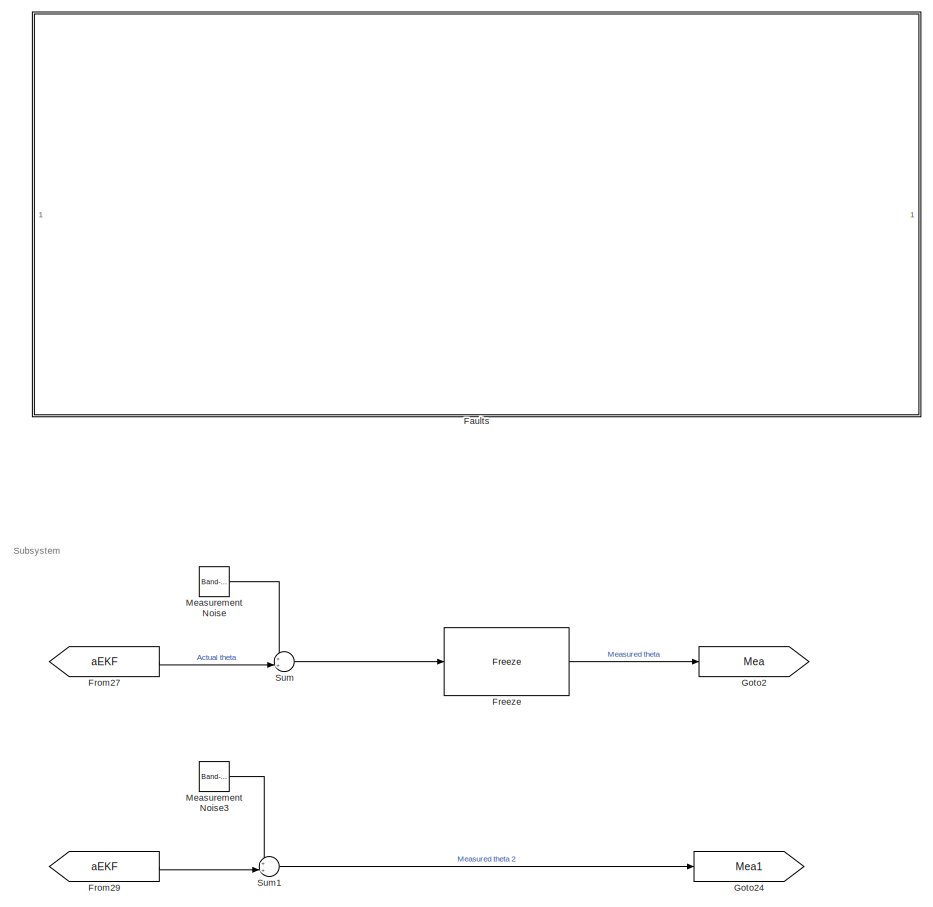
[diagram: root canvas - part 1/9, top center region]
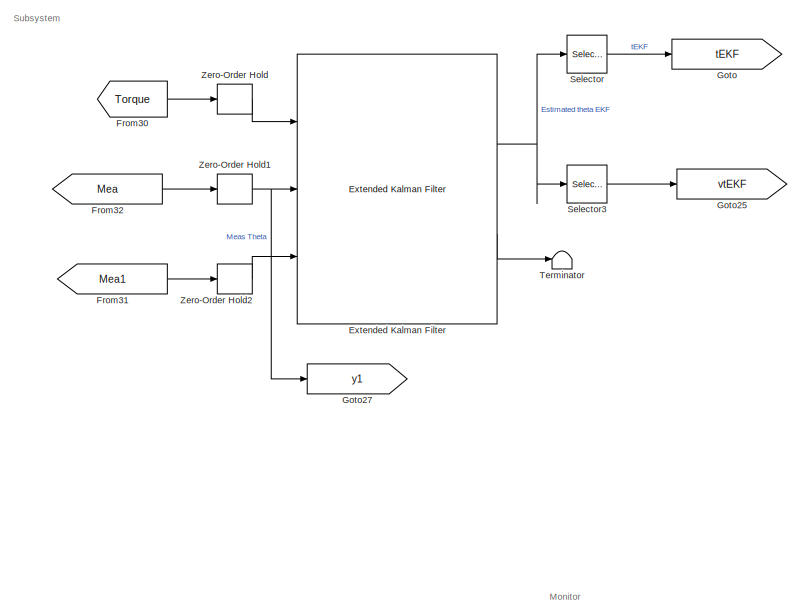
[diagram: root canvas - part 2/9, top right region]
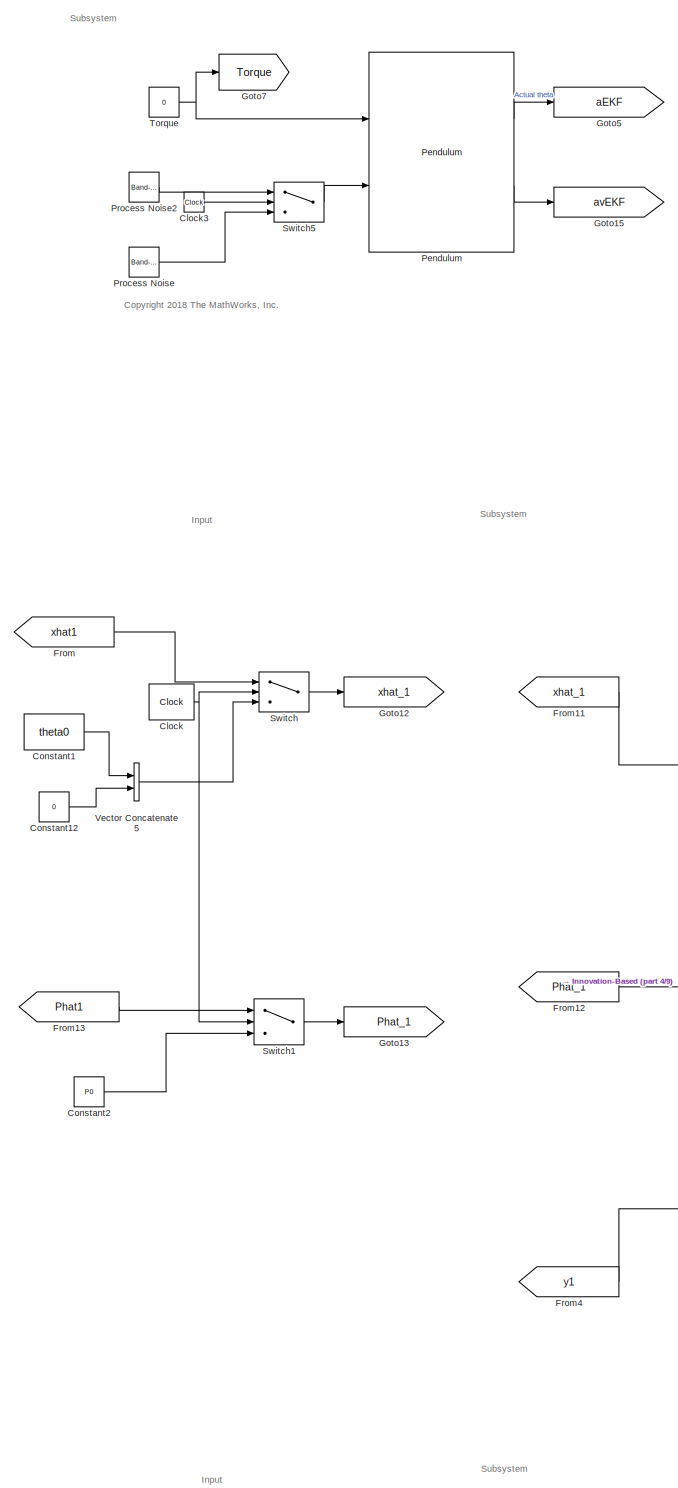
[diagram: root canvas - part 3/9, middle left region]
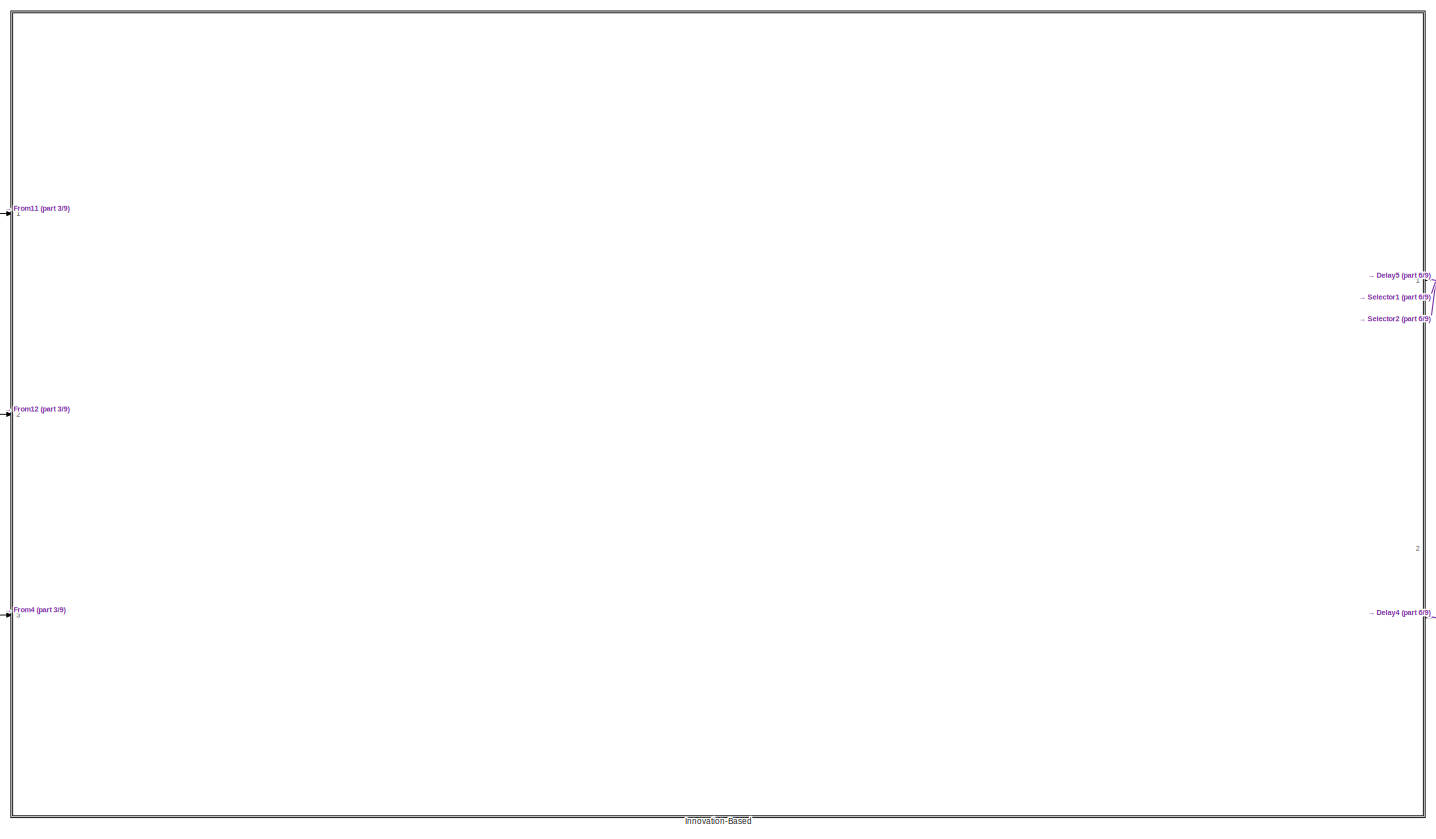
[diagram: root canvas - part 4/9, central region]
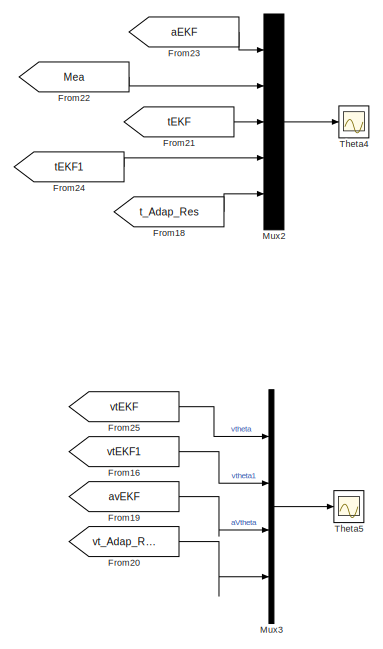
[diagram: root canvas - part 5/9, middle right region]
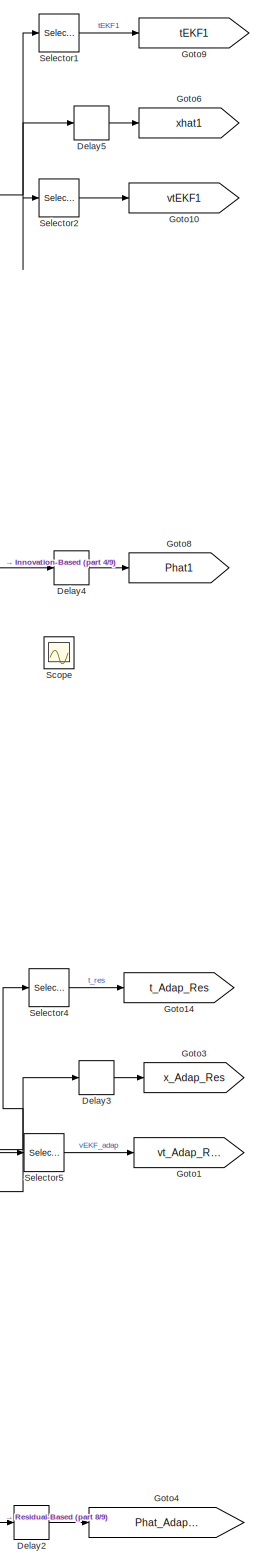
[diagram: root canvas - part 6/9, bottom right region]
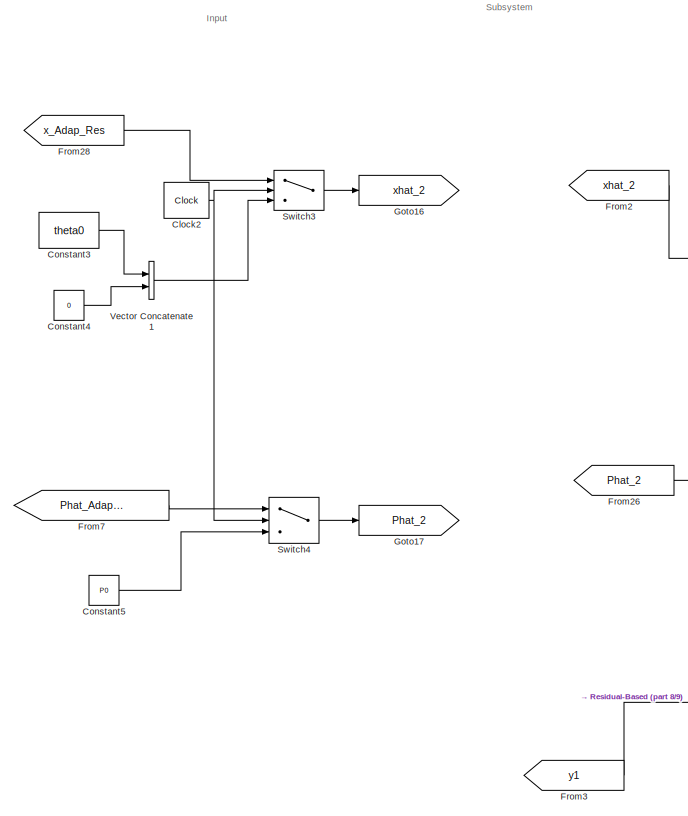
[diagram: root canvas - part 7/9, bottom left region]
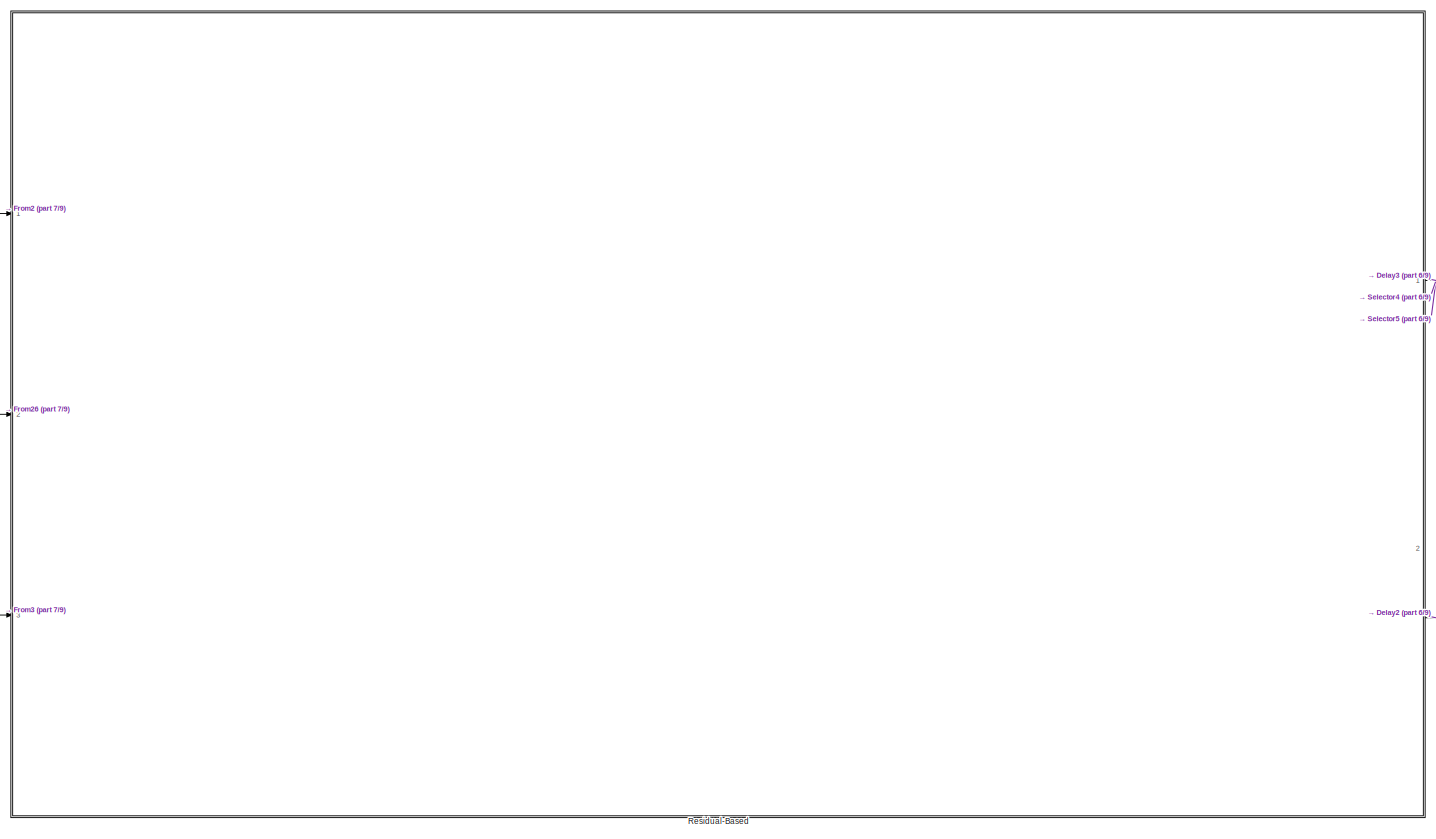
[diagram: root canvas - part 8/9, bottom center region]
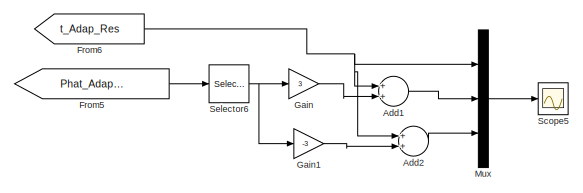
[diagram: root canvas - part 9/9, bottom right region]
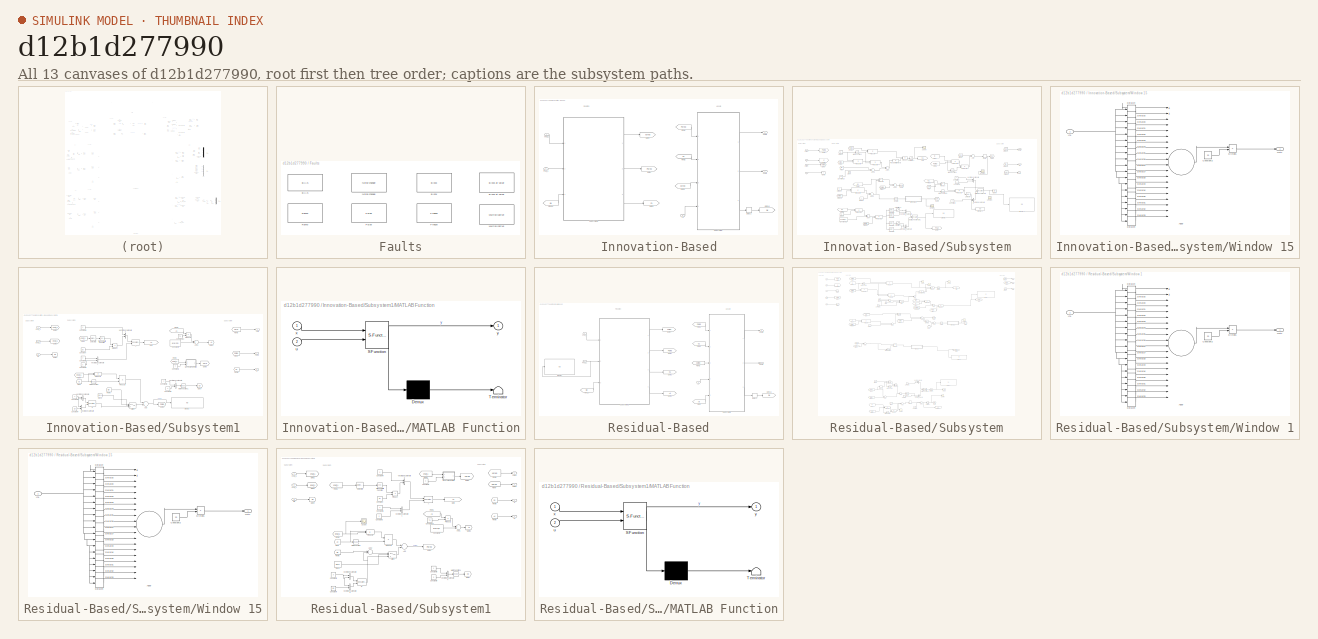
[diagram: thumbnail index - all 13 canvases of the model, root first then tree order]
MODEL slx_d12b1d277990
KIND model
CONFIG AbsTol = auto
CONFIG EnableMultiTasking = off
CONFIG FixedStep = .01
CONFIG MaxStep = auto
CONFIG MinStep = auto
CONFIG RelTol = 1e-3
CONFIG SampleTimeConstraint = Unconstrained
CONFIG Solver = FixedStepAuto
CONFIG SolverName = FixedStepAuto
CONFIG StartTime = 0.0
CONFIG StopTime = 40
BLOCK [Sum] Add1
  InputSameDT = off
  OutDataTypeStr = Inherit: Inherit via internal rule
  Ports = [2, 1]
  SaturateOnIntegerOverflow = off
BLOCK [Sum] Add2
  InputSameDT = off
  OutDataTypeStr = Inherit: Inherit via internal rule
  Ports = [2, 1]
  SaturateOnIntegerOverflow = off
BLOCK [Clock] Clock
  Decimation = 1000
  DisplayTime = on
BLOCK [Clock] Clock2
  Decimation = 1000
  DisplayTime = on
BLOCK [Clock] Clock3
BLOCK [Constant] Constant1
  Value = theta0
BLOCK [Constant] Constant12
  Value = 0
BLOCK [Constant] Constant2
  Value = P0
BLOCK [Constant] Constant3
  Value = theta0
BLOCK [Constant] Constant4
  Value = 0
BLOCK [Constant] Constant5
  Value = P0
BLOCK [Delay] Delay2
  DelayLength = 1
  InputPortMap = u0
  Ports = [1, 1]
BLOCK [Delay] Delay3
  DelayLength = 1
  InputPortMap = u0
  Ports = [1, 1]
BLOCK [Delay] Delay4
  DelayLength = 1
  InputPortMap = u0
  Ports = [1, 1]
BLOCK [Delay] Delay5
  DelayLength = 1
  InputPortMap = u0
  Ports = [1, 1]
BLOCK [Reference] Extended Kalman Filter  REF=sharedTrackingLibrary/Extended Kalman Filter
  Ports = [3, 2]
  SourceBlock = sharedTrackingLibrary/Extended Kalman Filter
  SourceProductBaseCode = CT
  SourceProductName = Control System Toolbox
  SourceType = Extended Kalman Filter
BLOCK [SubSystem] Faults
  Ports = []
  RequestExecContextInheritance = off
BLOCK [Reference] Faults/BIAS  REF=Bias/BIAS
  Ports = [1, 1]
  SourceBlock = Bias/BIAS
BLOCK [Reference] Faults/Block  REF=Bias/Block
  Ports = [1, 1]
  SourceBlock = Bias/Block
BLOCK [Reference] Faults/Block at value  REF=Bias/Block at value
  Ports = [1, 1]
  SourceBlock = Bias/Block at value
BLOCK [Reference] Faults/Freeze  REF=Bias/Freeze
  Ports = [1, 1]
  SourceBlock = Bias/Freeze
BLOCK [Reference] Faults/Multiplicative  REF=Bias/Multiplicative
  Ports = [1, 1]
  SourceBlock = Bias/Multiplicative
BLOCK [Reference] Faults/Noise change  REF=Bias/Noise change
  Ports = [1, 1]
  SourceBlock = Bias/Noise change
BLOCK [Reference] Faults/Pulse  REF=Bias/Pulse
  Ports = [1, 1]
  SourceBlock = Bias/Pulse
BLOCK [Reference] Faults/Ramp  REF=Bias/Ramp
  Ports = [1, 1]
  SourceBlock = Bias/Ramp
BLOCK [Reference] Freeze  REF=Bias/Freeze
  Ports = [1, 1]
  SourceBlock = Bias/Freeze
BLOCK [From] From
  GotoTag = xhat1
BLOCK [From] From11
  GotoTag = xhat_1
BLOCK [From] From12
  GotoTag = Phat_1
BLOCK [From] From13
  GotoTag = Phat1
BLOCK [From] From16
  GotoTag = vtEKF1
BLOCK [From] From18
  GotoTag = t_Adap_Res
BLOCK [From] From19
  GotoTag = avEKF
BLOCK [From] From2
  GotoTag = xhat_2
BLOCK [From] From20
  GotoTag = vt_Adap_Res
BLOCK [From] From21
  GotoTag = tEKF
BLOCK [From] From22
  GotoTag = Mea
BLOCK [From] From23
  GotoTag = aEKF
BLOCK [From] From24
  GotoTag = tEKF1
BLOCK [From] From25
  GotoTag = vtEKF
BLOCK [From] From26
  GotoTag = Phat_2
BLOCK [From] From27
  GotoTag = aEKF
BLOCK [From] From28
  GotoTag = x_Adap_Res
BLOCK [From] From29
  GotoTag = aEKF
BLOCK [From] From3
  GotoTag = y1
BLOCK [From] From30
  GotoTag = Torque
BLOCK [From] From31
  GotoTag = Mea1
BLOCK [From] From32
  GotoTag = Mea
BLOCK [From] From4
  GotoTag = y1
BLOCK [From] From5
  GotoTag = Phat_Adap_Res
BLOCK [From] From6
  GotoTag = t_Adap_Res
BLOCK [From] From7
  GotoTag = Phat_Adap_Res
BLOCK [Gain] Gain
  Gain = 3
  OutDataTypeStr = Inherit: Inherit via internal rule
  ParamDataTypeStr = Inherit: Inherit via internal rule
  SaturateOnIntegerOverflow = off
BLOCK [Gain] Gain1
  Gain = -3
  OutDataTypeStr = Inherit: Inherit via internal rule
  ParamDataTypeStr = Inherit: Inherit via internal rule
  SaturateOnIntegerOverflow = off
BLOCK [Goto] Goto
  GotoTag = tEKF
BLOCK [Goto] Goto1
  GotoTag = vt_Adap_Res
BLOCK [Goto] Goto10
  GotoTag = vtEKF1
BLOCK [Goto] Goto12
  GotoTag = xhat_1
BLOCK [Goto] Goto13
  GotoTag = Phat_1
BLOCK [Goto] Goto14
  GotoTag = t_Adap_Res
BLOCK [Goto] Goto15
  GotoTag = avEKF
BLOCK [Goto] Goto16
  GotoTag = xhat_2
BLOCK [Goto] Goto17
  GotoTag = Phat_2
BLOCK [Goto] Goto2
  GotoTag = Mea
BLOCK [Goto] Goto24
  GotoTag = Mea1
BLOCK [Goto] Goto25
  GotoTag = vtEKF
BLOCK [Goto] Goto27
  GotoTag = y1
BLOCK [Goto] Goto3
  GotoTag = x_Adap_Res
BLOCK [Goto] Goto4
  GotoTag = Phat_Adap_Res
BLOCK [Goto] Goto5
  GotoTag = aEKF
BLOCK [Goto] Goto6
  GotoTag = xhat1
BLOCK [Goto] Goto7
  GotoTag = Torque
BLOCK [Goto] Goto8
  GotoTag = Phat1
BLOCK [Goto] Goto9
  GotoTag = tEKF1
BLOCK [SubSystem] Innovation-Based
  Ports = [3, 2]
  RequestExecContextInheritance = off
BLOCK [Delay] Innovation-Based/Delay2
  DelayLength = 1
  InputPortMap = u0
  Ports = [1, 1]
  SampleTime = Ts
BLOCK [From] Innovation-Based/From1
  GotoTag = Ppred
BLOCK [From] Innovation-Based/From16
  GotoTag = Qk
BLOCK [From] Innovation-Based/From2
  GotoTag = C1
BLOCK [From] Innovation-Based/From3
  GotoTag = xpred
BLOCK [Goto] Innovation-Based/Goto1
  GotoTag = Ppred
BLOCK [Goto] Innovation-Based/Goto16
  GotoTag = Qk
BLOCK [Goto] Innovation-Based/Goto3
  GotoTag = C1
BLOCK [Goto] Innovation-Based/Goto4
  GotoTag = xpred
BLOCK [Outport] Innovation-Based/Phat1
  IconDisplay = Port number
  Port = 2
BLOCK [Inport] Innovation-Based/Phat_1
  IconDisplay = Port number
  Port = 2
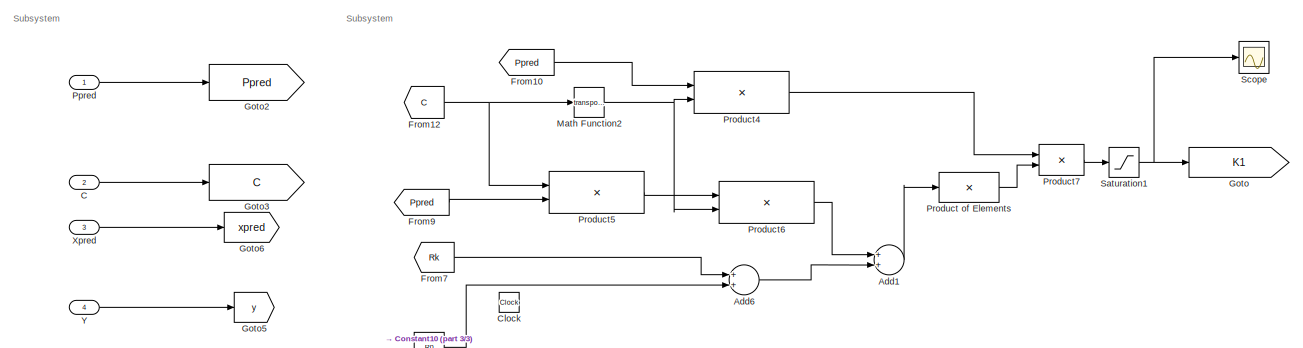
[diagram: Innovation-Based/Subsystem - part 1/3, top left region]
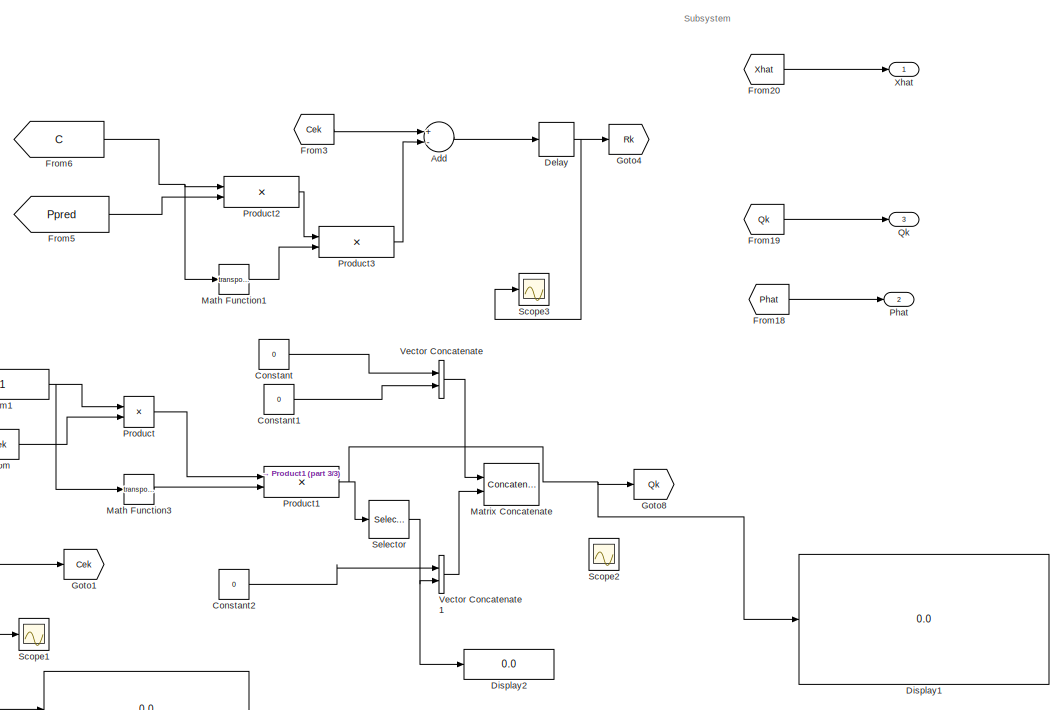
[diagram: Innovation-Based/Subsystem - part 2/3, right side, full height]
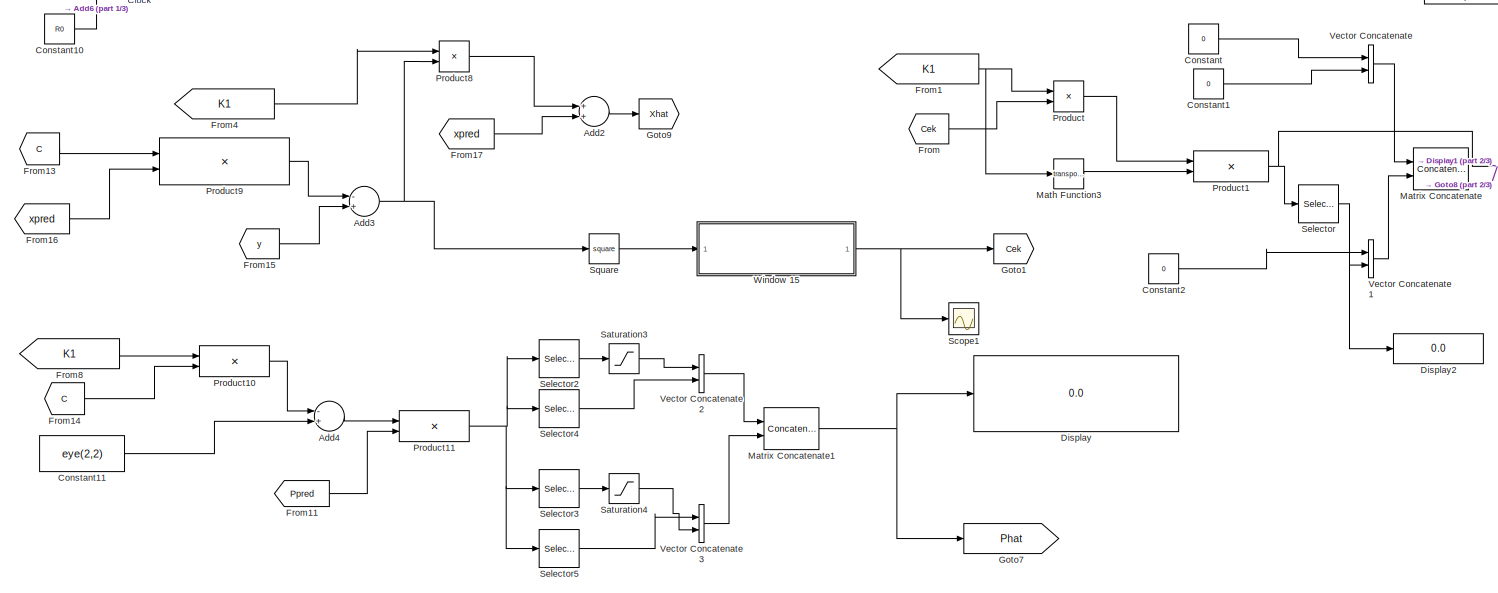
[diagram: Innovation-Based/Subsystem - part 3/3, bottom center region]
BLOCK [SubSystem] Innovation-Based/Subsystem
  Ports = [4, 3]
  RequestExecContextInheritance = off
BLOCK [Sum] Innovation-Based/Subsystem/Add
  InputSameDT = off
  Inputs = +-
  OutDataTypeStr = Inherit: Inherit via internal rule
  Ports = [2, 1]
  SaturateOnIntegerOverflow = off
BLOCK [Sum] Innovation-Based/Subsystem/Add1
  InputSameDT = off
  OutDataTypeStr = Inherit: Inherit via internal rule
  Ports = [2, 1]
  SaturateOnIntegerOverflow = off
BLOCK [Sum] Innovation-Based/Subsystem/Add2
  InputSameDT = off
  OutDataTypeStr = Inherit: Inherit via internal rule
  Ports = [2, 1]
  SaturateOnIntegerOverflow = off
BLOCK [Sum] Innovation-Based/Subsystem/Add3
  InputSameDT = off
  Inputs = -+
  OutDataTypeStr = Inherit: Inherit via internal rule
  Ports = [2, 1]
  SaturateOnIntegerOverflow = off
BLOCK [Sum] Innovation-Based/Subsystem/Add4
  InputSameDT = off
  Inputs = -+
  OutDataTypeStr = Inherit: Inherit via internal rule
  Ports = [2, 1]
  SaturateOnIntegerOverflow = off
BLOCK [Sum] Innovation-Based/Subsystem/Add6
  InputSameDT = off
  OutDataTypeStr = Inherit: Inherit via internal rule
  Ports = [2, 1]
  SaturateOnIntegerOverflow = off
BLOCK [Inport] Innovation-Based/Subsystem/C
  IconDisplay = Port number
  Port = 2
BLOCK [Clock] Innovation-Based/Subsystem/Clock
BLOCK [Constant] Innovation-Based/Subsystem/Constant
  Value = 0
BLOCK [Constant] Innovation-Based/Subsystem/Constant1
  Value = 0
BLOCK [Constant] Innovation-Based/Subsystem/Constant10
  Value = R0
BLOCK [Constant] Innovation-Based/Subsystem/Constant11
  Value = eye(2,2)
BLOCK [Constant] Innovation-Based/Subsystem/Constant2
  Value = 0
BLOCK [Delay] Innovation-Based/Subsystem/Delay
  DelayLength = 1
  InputPortMap = u0
  Ports = [1, 1]
BLOCK [Display] Innovation-Based/Subsystem/Display
  Decimation = 1
  Ports = [1]
BLOCK [Display] Innovation-Based/Subsystem/Display1
  Decimation = 1
  Ports = [1]
BLOCK [Display] Innovation-Based/Subsystem/Display2
  Decimation = 1
  Ports = [1]
BLOCK [From] Innovation-Based/Subsystem/From
  GotoTag = Cek
BLOCK [From] Innovation-Based/Subsystem/From1
  GotoTag = K1
BLOCK [From] Innovation-Based/Subsystem/From10
  GotoTag = Ppred
BLOCK [From] Innovation-Based/Subsystem/From11
  GotoTag = Ppred
BLOCK [From] Innovation-Based/Subsystem/From12
  GotoTag = C
BLOCK [From] Innovation-Based/Subsystem/From13
  GotoTag = C
BLOCK [From] Innovation-Based/Subsystem/From14
  GotoTag = C
BLOCK [From] Innovation-Based/Subsystem/From15
  GotoTag = y
BLOCK [From] Innovation-Based/Subsystem/From16
  GotoTag = xpred
BLOCK [From] Innovation-Based/Subsystem/From17
  GotoTag = xpred
BLOCK [From] Innovation-Based/Subsystem/From18
  GotoTag = Phat
BLOCK [From] Innovation-Based/Subsystem/From19
  GotoTag = Qk
BLOCK [From] Innovation-Based/Subsystem/From20
  GotoTag = Xhat
BLOCK [From] Innovation-Based/Subsystem/From3
  GotoTag = Cek
BLOCK [From] Innovation-Based/Subsystem/From4
  GotoTag = K1
BLOCK [From] Innovation-Based/Subsystem/From5
  GotoTag = Ppred
BLOCK [From] Innovation-Based/Subsystem/From6
  GotoTag = C
BLOCK [From] Innovation-Based/Subsystem/From7
  GotoTag = Rk
BLOCK [From] Innovation-Based/Subsystem/From8
  GotoTag = K1
BLOCK [From] Innovation-Based/Subsystem/From9
  GotoTag = Ppred
BLOCK [Goto] Innovation-Based/Subsystem/Goto
  GotoTag = K1
BLOCK [Goto] Innovation-Based/Subsystem/Goto1
  GotoTag = Cek
BLOCK [Goto] Innovation-Based/Subsystem/Goto2
  GotoTag = Ppred
BLOCK [Goto] Innovation-Based/Subsystem/Goto3
  GotoTag = C
BLOCK [Goto] Innovation-Based/Subsystem/Goto4
  GotoTag = Rk
BLOCK [Goto] Innovation-Based/Subsystem/Goto5
  GotoTag = y
BLOCK [Goto] Innovation-Based/Subsystem/Goto6
  GotoTag = xpred
BLOCK [Goto] Innovation-Based/Subsystem/Goto7
  GotoTag = Phat
BLOCK [Goto] Innovation-Based/Subsystem/Goto8
  GotoTag = Qk
BLOCK [Goto] Innovation-Based/Subsystem/Goto9
  GotoTag = Xhat
BLOCK [Math] Innovation-Based/Subsystem/Math Function1
  Operator = transpose
  Ports = [1, 1]
BLOCK [Math] Innovation-Based/Subsystem/Math Function2
  Operator = transpose
  Ports = [1, 1]
BLOCK [Math] Innovation-Based/Subsystem/Math Function3
  Operator = transpose
  Ports = [1, 1]
BLOCK [Concatenate] Innovation-Based/Subsystem/Matrix Concatenate
  ConcatenateDimension = 2
  Mode = Multidimensional array
  Ports = [2, 1]
BLOCK [Concatenate] Innovation-Based/Subsystem/Matrix Concatenate1
  ConcatenateDimension = 2
  Mode = Multidimensional array
  Ports = [2, 1]
BLOCK [Outport] Innovation-Based/Subsystem/Phat 
  IconDisplay = Port number
  Port = 2
  PortDimensions = [2,2]
BLOCK [Inport] Innovation-Based/Subsystem/Ppred
  IconDisplay = Port number
BLOCK [Product] Innovation-Based/Subsystem/Product
  InputSameDT = off
  OutDataTypeStr = Inherit: Inherit via internal rule
  Ports = [2, 1]
  RndMeth = Floor
  SaturateOnIntegerOverflow = off
BLOCK [Product] Innovation-Based/Subsystem/Product of Elements
  InputSameDT = off
  Inputs = /
  Multiplication = Matrix(*)
  OutDataTypeStr = Inherit: Inherit via internal rule
  Ports = [1, 1]
  RndMeth = Floor
  SaturateOnIntegerOverflow = off
BLOCK [Product] Innovation-Based/Subsystem/Product1
  InputSameDT = off
  Multiplication = Matrix(*)
  OutDataTypeStr = Inherit: Inherit via internal rule
  Ports = [2, 1]
  RndMeth = Floor
  SaturateOnIntegerOverflow = off
BLOCK [Product] Innovation-Based/Subsystem/Product10
  InputSameDT = off
  Multiplication = Matrix(*)
  OutDataTypeStr = Inherit: Inherit via internal rule
  Ports = [2, 1]
  RndMeth = Floor
  SaturateOnIntegerOverflow = off
BLOCK [Product] Innovation-Based/Subsystem/Product11
  InputSameDT = off
  Multiplication = Matrix(*)
  OutDataTypeStr = Inherit: Inherit via internal rule
  Ports = [2, 1]
  RndMeth = Floor
  SaturateOnIntegerOverflow = off
BLOCK [Product] Innovation-Based/Subsystem/Product2
  InputSameDT = off
  Multiplication = Matrix(*)
  OutDataTypeStr = Inherit: Inherit via internal rule
  Ports = [2, 1]
  RndMeth = Floor
  SaturateOnIntegerOverflow = off
BLOCK [Product] Innovation-Based/Subsystem/Product3
  InputSameDT = off
  Multiplication = Matrix(*)
  OutDataTypeStr = Inherit: Inherit via internal rule
  Ports = [2, 1]
  RndMeth = Floor
  SaturateOnIntegerOverflow = off
BLOCK [Product] Innovation-Based/Subsystem/Product4
  InputSameDT = off
  Multiplication = Matrix(*)
  OutDataTypeStr = Inherit: Inherit via internal rule
  Ports = [2, 1]
  RndMeth = Floor
  SaturateOnIntegerOverflow = off
BLOCK [Product] Innovation-Based/Subsystem/Product5
  InputSameDT = off
  Multiplication = Matrix(*)
  OutDataTypeStr = Inherit: Inherit via internal rule
  Ports = [2, 1]
  RndMeth = Floor
  SaturateOnIntegerOverflow = off
BLOCK [Product] Innovation-Based/Subsystem/Product6
  InputSameDT = off
  Multiplication = Matrix(*)
  OutDataTypeStr = Inherit: Inherit via internal rule
  Ports = [2, 1]
  RndMeth = Floor
  SaturateOnIntegerOverflow = off
BLOCK [Product] Innovation-Based/Subsystem/Product7
  InputSameDT = off
  Multiplication = Matrix(*)
  OutDataTypeStr = Inherit: Inherit via internal rule
  Ports = [2, 1]
  RndMeth = Floor
  SaturateOnIntegerOverflow = off
BLOCK [Product] Innovation-Based/Subsystem/Product8
  InputSameDT = off
  Multiplication = Matrix(*)
  OutDataTypeStr = Inherit: Inherit via internal rule
  Ports = [2, 1]
  RndMeth = Floor
  SaturateOnIntegerOverflow = off
BLOCK [Product] Innovation-Based/Subsystem/Product9
  InputSameDT = off
  Multiplication = Matrix(*)
  OutDataTypeStr = Inherit: Inherit via internal rule
  Ports = [2, 1]
  RndMeth = Floor
  SaturateOnIntegerOverflow = off
BLOCK [Outport] Innovation-Based/Subsystem/Qk
  IconDisplay = Port number
  Port = 3
  PortDimensions = [2,2]
BLOCK [Saturate] Innovation-Based/Subsystem/Saturation1
  InputPortMap = u0
  LowerLimit = 0
  Ports = [1, 1]
  UpperLimit = 1
BLOCK [Saturate] Innovation-Based/Subsystem/Saturation3
  InputPortMap = u0
  LowerLimit = 0
  Ports = [1, 1]
  UpperLimit = 1
BLOCK [Saturate] Innovation-Based/Subsystem/Saturation4
  InputPortMap = u0
  LowerLimit = 0
  Ports = [1, 1]
  UpperLimit = 1
BLOCK [Scope] Innovation-Based/Subsystem/Scope
  Floating = off
  NumInputPorts = 1
  Ports = [1]
  ScopeSpecificationString = Simulink.scopes.TimeScopeBlockCfg('CurrentConfiguration', extmgr.ConfigurationSet(extmgr.Configuration('Core','General UI',true),extmgr.Configuration('Core','Source UI',true),extmgr.Configuration('Sources','WiredSimulink',true,'DataLoggingVariableName','ScopeData11'),extmgr.Configuration('Visuals','Time Domain',true,'SerializedDisplays',{struct('MinYLimReal','-3.21249','MaxYLimReal','27.62529','YL...<+1909ch>
BLOCK [Scope] Innovation-Based/Subsystem/Scope1
  Floating = off
  NumInputPorts = 1
  Ports = [1]
  ScopeSpecificationString = Simulink.scopes.TimeScopeBlockCfg('CurrentConfiguration', extmgr.ConfigurationSet(extmgr.Configuration('Core','General UI',true),extmgr.Configuration('Core','Source UI',true),extmgr.Configuration('Sources','WiredSimulink',true,'DataLoggingVariableName','ScopeData1'),extmgr.Configuration('Visuals','Time Domain',true,'SerializedDisplays',{struct('MinYLimReal','-1.864','MaxYLimReal','16.7769','YLabel...<+1389ch>
BLOCK [Scope] Innovation-Based/Subsystem/Scope2
  Floating = off
  NumInputPorts = 1
  Ports = [1]
  ScopeSpecificationString = Simulink.scopes.TimeScopeBlockCfg('CurrentConfiguration', extmgr.ConfigurationSet(extmgr.Configuration('Core','General UI',true),extmgr.Configuration('Core','Source UI',true),extmgr.Configuration('Sources','WiredSimulink',true,'DataLoggingVariableName','ScopeData2'),extmgr.Configuration('Visuals','Time Domain',true,'SerializedDisplays',{struct('MinYLimReal','-13437130520344530307759662223527022547...<+1869ch>
BLOCK [Scope] Innovation-Based/Subsystem/Scope3
  Floating = off
  NumInputPorts = 1
  Ports = [1]
  ScopeSpecificationString = Simulink.scopes.TimeScopeBlockCfg('CurrentConfiguration', extmgr.ConfigurationSet(extmgr.Configuration('Core','General UI',true),extmgr.Configuration('Core','Source UI',true),extmgr.Configuration('Sources','WiredSimulink',true,'DataLoggingVariableName','ScopeData18'),extmgr.Configuration('Visuals','Time Domain',true,'SerializedDisplays',{struct('MinYLimReal','-0.48608','MaxYLimReal','4.37472','YLa...<+1787ch>
BLOCK [Selector] Innovation-Based/Subsystem/Selector
  IndexOptions = Index vector (dialog),Index vector (dialog)
  Indices = 2,2
  InputPortWidth = 3
  NumberOfDimensions = 2
  OutputSizes = 1,1
  Ports = [1, 1]
BLOCK [Selector] Innovation-Based/Subsystem/Selector2
  IndexOptions = Index vector (dialog),Index vector (dialog)
  Indices = 1,1
  InputPortWidth = 3
  NumberOfDimensions = 2
  OutputSizes = 1,1
  Ports = [1, 1]
BLOCK [Selector] Innovation-Based/Subsystem/Selector3
  IndexOptions = Index vector (dialog),Index vector (dialog)
  Indices = 2,2
  InputPortWidth = 3
  NumberOfDimensions = 2
  OutputSizes = 1,1
  Ports = [1, 1]
BLOCK [Selector] Innovation-Based/Subsystem/Selector4
  IndexOptions = Index vector (dialog),Index vector (dialog)
  Indices = 2,1
  InputPortWidth = 3
  NumberOfDimensions = 2
  OutputSizes = 1,1
  Ports = [1, 1]
BLOCK [Selector] Innovation-Based/Subsystem/Selector5
  IndexOptions = Index vector (dialog),Index vector (dialog)
  Indices = 1,2
  InputPortWidth = 3
  NumberOfDimensions = 2
  OutputSizes = 1,1
  Ports = [1, 1]
BLOCK [Math] Innovation-Based/Subsystem/Square
  Operator = square
  Ports = [1, 1]
BLOCK [Concatenate] Innovation-Based/Subsystem/Vector Concatenate
  Ports = [2, 1]
BLOCK [Concatenate] Innovation-Based/Subsystem/Vector Concatenate1
  Ports = [2, 1]
BLOCK [Concatenate] Innovation-Based/Subsystem/Vector Concatenate2
  Ports = [2, 1]
BLOCK [Concatenate] Innovation-Based/Subsystem/Vector Concatenate3
  Ports = [2, 1]
BLOCK [SubSystem] Innovation-Based/Subsystem/Window 15
  Ports = [1, 1]
  RequestExecContextInheritance = off
BLOCK [Sum] Innovation-Based/Subsystem/Window 15/Add9
  InputSameDT = off
  Inputs = 20
  OutDataTypeStr = Inherit: Inherit via internal rule
  Ports = [20, 1]
  SaturateOnIntegerOverflow = off
BLOCK [Constant] Innovation-Based/Subsystem/Window 15/Constant2
  Value = 20
BLOCK [Delay] Innovation-Based/Subsystem/Window 15/Delay14
  DelayLength = 1
  InputPortMap = u0
  Ports = [1, 1]
  SampleTime = Ts
BLOCK [Delay] Innovation-Based/Subsystem/Window 15/Delay15
  InputPortMap = u0
  Ports = [1, 1]
  SampleTime = Ts
BLOCK [Delay] Innovation-Based/Subsystem/Window 15/Delay16
  DelayLength = 14
  InputPortMap = u0
  Ports = [1, 1]
  SampleTime = Ts
BLOCK [Delay] Innovation-Based/Subsystem/Window 15/Delay17
  DelayLength = 11
  InputPortMap = u0
  Ports = [1, 1]
  SampleTime = Ts
BLOCK [Delay] Innovation-Based/Subsystem/Window 15/Delay18
  DelayLength = 12
  InputPortMap = u0
  Ports = [1, 1]
  SampleTime = Ts
BLOCK [Delay] Innovation-Based/Subsystem/Window 15/Delay19
  DelayLength = 13
  InputPortMap = u0
  Ports = [1, 1]
  SampleTime = Ts
BLOCK [Delay] Innovation-Based/Subsystem/Window 15/Delay20
  DelayLength = 3
  InputPortMap = u0
  Ports = [1, 1]
  SampleTime = Ts
BLOCK [Delay] Innovation-Based/Subsystem/Window 15/Delay21
  DelayLength = 4
  InputPortMap = u0
  Ports = [1, 1]
  SampleTime = Ts
BLOCK [Delay] Innovation-Based/Subsystem/Window 15/Delay22
  DelayLength = 5
  InputPortMap = u0
  Ports = [1, 1]
  SampleTime = Ts
BLOCK [Delay] Innovation-Based/Subsystem/Window 15/Delay23
  DelayLength = 6
  InputPortMap = u0
  Ports = [1, 1]
  SampleTime = Ts
BLOCK [Delay] Innovation-Based/Subsystem/Window 15/Delay24
  DelayLength = 7
  InputPortMap = u0
  Ports = [1, 1]
  SampleTime = Ts
BLOCK [Delay] Innovation-Based/Subsystem/Window 15/Delay25
  DelayLength = 8
  InputPortMap = u0
  Ports = [1, 1]
  SampleTime = Ts
BLOCK [Delay] Innovation-Based/Subsystem/Window 15/Delay26
  DelayLength = 9
  InputPortMap = u0
  Ports = [1, 1]
  SampleTime = Ts
BLOCK [Delay] Innovation-Based/Subsystem/Window 15/Delay27
  DelayLength = 10
  InputPortMap = u0
  Ports = [1, 1]
  SampleTime = Ts
BLOCK [Delay] Innovation-Based/Subsystem/Window 15/Delay30
  DelayLength = 15
  InputPortMap = u0
  Ports = [1, 1]
  SampleTime = Ts
BLOCK [Delay] Innovation-Based/Subsystem/Window 15/Delay31
  DelayLength = 16
  InputPortMap = u0
  Ports = [1, 1]
  SampleTime = Ts
BLOCK [Delay] Innovation-Based/Subsystem/Window 15/Delay32
  DelayLength = 17
  InputPortMap = u0
  Ports = [1, 1]
  SampleTime = Ts
BLOCK [Delay] Innovation-Based/Subsystem/Window 15/Delay33
  DelayLength = 18
  InputPortMap = u0
  Ports = [1, 1]
  SampleTime = Ts
BLOCK [Delay] Innovation-Based/Subsystem/Window 15/Delay34
  DelayLength = 19
  InputPortMap = u0
  Ports = [1, 1]
  SampleTime = Ts
BLOCK [Product] Innovation-Based/Subsystem/Window 15/Divide1
  InputSameDT = off
  Inputs = */
  OutDataTypeStr = Inherit: Inherit via internal rule
  Ports = [2, 1]
  RndMeth = Floor
  SaturateOnIntegerOverflow = off
BLOCK [Inport] Innovation-Based/Subsystem/Window 15/In1
  IconDisplay = Port number
BLOCK [Outport] Innovation-Based/Subsystem/Window 15/Out1
  IconDisplay = Port number
BLOCK [Outport] Innovation-Based/Subsystem/Xhat
  IconDisplay = Port number
  PortDimensions = [2,1]
BLOCK [Inport] Innovation-Based/Subsystem/Xpred
  IconDisplay = Port number
  Port = 3
BLOCK [Inport] Innovation-Based/Subsystem/Y 
  IconDisplay = Port number
  Port = 4
BLOCK [SubSystem] Innovation-Based/Subsystem1
  Ports = [3, 3]
  RequestExecContextInheritance = off
BLOCK [Concatenate] Innovation-Based/Subsystem1/A
  ConcatenateDimension = 2
  Mode = Multidimensional array
  Ports = [2, 1]
BLOCK [Sum] Innovation-Based/Subsystem1/Add
  InputSameDT = off
  OutDataTypeStr = Inherit: Inherit via internal rule
  Ports = [2, 1]
  SaturateOnIntegerOverflow = off
BLOCK [Sum] Innovation-Based/Subsystem1/Add1
  InputSameDT = off
  OutDataTypeStr = Inherit: Inherit via internal rule
  Ports = [2, 1]
  SaturateOnIntegerOverflow = off
BLOCK [Outport] Innovation-Based/Subsystem1/C 
  IconDisplay = Port number
  Port = 3
BLOCK [Clock] Innovation-Based/Subsystem1/Clock
  Decimation = 1000
  DisplayTime = on
BLOCK [Constant] Innovation-Based/Subsystem1/Constant
  Value = -g/l
BLOCK [Constant] Innovation-Based/Subsystem1/Constant1
  Value = 0
BLOCK [Constant] Innovation-Based/Subsystem1/Constant10
  Value = Ts
BLOCK [Constant] Innovation-Based/Subsystem1/Constant2
  Value = eye(2,2)
BLOCK [Constant] Innovation-Based/Subsystem1/Constant3
  Value = 0
BLOCK [Constant] Innovation-Based/Subsystem1/Constant4
  Value = 0
BLOCK [Constant] Innovation-Based/Subsystem1/Constant5
BLOCK [Constant] Innovation-Based/Subsystem1/Constant6
  Value = 0
BLOCK [Constant] Innovation-Based/Subsystem1/Constant7
  Value = Q0
BLOCK [Constant] Innovation-Based/Subsystem1/Constant8
BLOCK [Constant] Innovation-Based/Subsystem1/Constant9
  Value = 0
BLOCK [Display] Innovation-Based/Subsystem1/Display
  Decimation = 1
  Ports = [1]
BLOCK [From] Innovation-Based/Subsystem1/From
  GotoTag = Ak
BLOCK [From] Innovation-Based/Subsystem1/From1
  GotoTag = A1
BLOCK [From] Innovation-Based/Subsystem1/From2
  GotoTag = xhat_1
BLOCK [From] Innovation-Based/Subsystem1/From3
  GotoTag = xhat_1
BLOCK [From] Innovation-Based/Subsystem1/From4
  GotoTag = phat_1
BLOCK [From] Innovation-Based/Subsystem1/From5
  GotoTag = Qk
BLOCK [From] Innovation-Based/Subsystem1/From6
  GotoTag = xpre
BLOCK [From] Innovation-Based/Subsystem1/From7
  GotoTag = Ppred
BLOCK [From] Innovation-Based/Subsystem1/From8
  GotoTag = Ck
BLOCK [Goto] Innovation-Based/Subsystem1/Goto
  GotoTag = A1
BLOCK [Goto] Innovation-Based/Subsystem1/Goto1
  GotoTag = Ak
BLOCK [Goto] Innovation-Based/Subsystem1/Goto2
  GotoTag = xhat_1
BLOCK [Goto] Innovation-Based/Subsystem1/Goto3
  GotoTag = phat_1
BLOCK [Goto] Innovation-Based/Subsystem1/Goto4
  GotoTag = Qk
BLOCK [Goto] Innovation-Based/Subsystem1/Goto5
  GotoTag = xpre
BLOCK [Goto] Innovation-Based/Subsystem1/Goto6
  GotoTag = Ppred
BLOCK [Goto] Innovation-Based/Subsystem1/Goto7
  GotoTag = Ck
BLOCK [SubSystem] Innovation-Based/Subsystem1/MATLAB Function
  ErrorFcn = Stateflow.Translate.translate
  PermitHierarchicalResolution = ExplicitOnly
  Ports = [2, 1]
  RequestExecContextInheritance = off
  SFBlockType = MATLAB Function
  TreatAsAtomicUnit = on
BLOCK [Demux] Innovation-Based/Subsystem1/MATLAB Function/ Demux 
  Outputs = 1
  Ports = [1, 1]
BLOCK [S-Function] Innovation-Based/Subsystem1/MATLAB Function/ SFunction 
  EnableBusSupport = on
  FunctionName = sf_sfun
  PortCounts = [2 2]
  Ports = [2, 2]
  SFcnIsStateOwnerBlock = off
  SFunctionDeploymentMode = off
  Tag = Stateflow S-Function Kalman_Filter_Simulink_Example_adap_SMNSF 2
BLOCK [Terminator] Innovation-Based/Subsystem1/MATLAB Function/ Terminator 
BLOCK [Inport] Innovation-Based/Subsystem1/MATLAB Function/u
  IconDisplay = Port number
  Port = 2
BLOCK [Inport] Innovation-Based/Subsystem1/MATLAB Function/x
  IconDisplay = Port number
BLOCK [Outport] Innovation-Based/Subsystem1/MATLAB Function/y
  IconDisplay = Port number
BLOCK [Math] Innovation-Based/Subsystem1/Math Function
  Operator = transpose
  Ports = [1, 1]
BLOCK [Math] Innovation-Based/Subsystem1/Math Function1
  Operator = transpose
  Ports = [1, 1]
BLOCK [Outport] Innovation-Based/Subsystem1/Ppred
  IconDisplay = Port number
  Port = 2
BLOCK [Product] Innovation-Based/Subsystem1/Product
  InputSameDT = off
  OutDataTypeStr = Inherit: Inherit via internal rule
  Ports = [2, 1]
  RndMeth = Floor
  SaturateOnIntegerOverflow = off
BLOCK [Product] Innovation-Based/Subsystem1/Product1
  InputSameDT = off
  OutDataTypeStr = Inherit: Inherit via internal rule
  Ports = [2, 1]
  RndMeth = Floor
  SaturateOnIntegerOverflow = off
BLOCK [Product] Innovation-Based/Subsystem1/Product2
  InputSameDT = off
  Multiplication = Matrix(*)
  OutDataTypeStr = Inherit: Inherit via internal rule
  Ports = [2, 1]
  RndMeth = Floor
  SaturateOnIntegerOverflow = off
BLOCK [Product] Innovation-Based/Subsystem1/Product3
  InputSameDT = off
  Multiplication = Matrix(*)
  OutDataTypeStr = Inherit: Inherit via internal rule
  Ports = [2, 1]
  RndMeth = Floor
  SaturateOnIntegerOverflow = off
BLOCK [Concatenate] Innovation-Based/Subsystem1/Q
  ConcatenateDimension = 2
  Mode = Multidimensional array
  Ports = [2, 1]
BLOCK [Inport] Innovation-Based/Subsystem1/Qk 
  IconDisplay = Port number
  Port = 3
BLOCK [Selector] Innovation-Based/Subsystem1/Selector2
  IndexOptions = Index vector (dialog)
  Indices = 1
  InputPortWidth = 2
  OutputSizes = 1
  Ports = [1, 1]
BLOCK [Switch] Innovation-Based/Subsystem1/Switch
  Criteria = u2 > Threshold
  InputSameDT = off
  SaturateOnIntegerOverflow = off
  Threshold = 5*Ts
BLOCK [Trigonometry] Innovation-Based/Subsystem1/Trigonometric Function
  Operator = cos
  Ports = [1, 1]
BLOCK [Concatenate] Innovation-Based/Subsystem1/Vector Concatenate
  Ports = [2, 1]
BLOCK [Concatenate] Innovation-Based/Subsystem1/Vector Concatenate1
  Ports = [2, 1]
BLOCK [Concatenate] Innovation-Based/Subsystem1/Vector Concatenate2
  Ports = [2, 1]
BLOCK [Concatenate] Innovation-Based/Subsystem1/Vector Concatenate3
  Ports = [2, 1]
BLOCK [Concatenate] Innovation-Based/Subsystem1/Vector Concatenate4
  Ports = [2, 1]
BLOCK [Inport] Innovation-Based/Subsystem1/phat_1 
  IconDisplay = Port number
  Port = 2
BLOCK [Inport] Innovation-Based/Subsystem1/xhat_1
  IconDisplay = Port number
BLOCK [Outport] Innovation-Based/Subsystem1/xpre
  IconDisplay = Port number
BLOCK [Outport] Innovation-Based/xhat1
  IconDisplay = Port number
BLOCK [Inport] Innovation-Based/xhat_1
  IconDisplay = Port number
BLOCK [Inport] Innovation-Based/y1
  IconDisplay = Port number
  Port = 3
BLOCK [Reference] Measurement Noise  REF=simulink/Sources/Band-Limited
White Noise
  Ports = [0, 1]
  SourceBlock = simulink/Sources/Band-Limited\nWhite Noise
  SourceProductBaseCode = SL
  SourceProductName = Simulink
  SourceType = Band-Limited White Noise.
BLOCK [Reference] Measurement Noise3  REF=simulink/Sources/Band-Limited
White Noise
  Ports = [0, 1]
  SourceBlock = simulink/Sources/Band-Limited\nWhite Noise
  SourceProductBaseCode = SL
  SourceProductName = Simulink
  SourceType = Band-Limited White Noise.
BLOCK [Mux] Mux
  DisplayOption = bar
  Inputs = 3
  Ports = [3, 1]
BLOCK [Mux] Mux2
  DisplayOption = bar
  Inputs = 5
  Ports = [5, 1]
BLOCK [Mux] Mux3
  DisplayOption = bar
  Ports = [4, 1]
BLOCK [Reference] Pendulum  REF=Meldas_Library/Pendulum
  Ports = [2, 2]
  SourceBlock = Meldas_Library/Pendulum
BLOCK [Reference] Process Noise  REF=simulink/Sources/Band-Limited
White Noise
  Ports = [0, 1]
  SourceBlock = simulink/Sources/Band-Limited\nWhite Noise
  SourceProductBaseCode = SL
  SourceProductName = Simulink
  SourceType = Band-Limited White Noise.
BLOCK [Reference] Process Noise2  REF=simulink/Sources/Band-Limited
White Noise
  Ports = [0, 1]
  SourceBlock = simulink/Sources/Band-Limited\nWhite Noise
  SourceProductBaseCode = SL
  SourceProductName = Simulink
  SourceType = Band-Limited White Noise.
BLOCK [SubSystem] Residual-Based
  Ports = [3, 2]
  RequestExecContextInheritance = off
BLOCK [Delay] Residual-Based/Delay2
  DelayLength = 1
  InputPortMap = u0
  Ports = [1, 1]
  SampleTime = Ts
BLOCK [Display] Residual-Based/Display
  Decimation = 1
  Ports = [1]
BLOCK [From] Residual-Based/From
  GotoTag = Ak
BLOCK [From] Residual-Based/From1
  GotoTag = Ppred
BLOCK [From] Residual-Based/From16
  GotoTag = Qk
BLOCK [From] Residual-Based/From2
  GotoTag = C1
BLOCK [From] Residual-Based/From3
  GotoTag = xpred
BLOCK [Goto] Residual-Based/Goto1
  GotoTag = Ppred
BLOCK [Goto] Residual-Based/Goto16
  GotoTag = Qk
BLOCK [Goto] Residual-Based/Goto2
  GotoTag = Ak
BLOCK [Goto] Residual-Based/Goto3
  GotoTag = C1
BLOCK [Goto] Residual-Based/Goto4
  GotoTag = xpred
BLOCK [Outport] Residual-Based/Phat1
  IconDisplay = Port number
  Port = 2
BLOCK [Inport] Residual-Based/Phat_1
  IconDisplay = Port number
  Port = 2
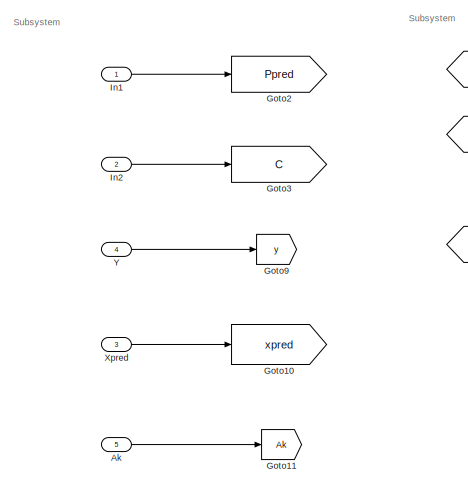
[diagram: Residual-Based/Subsystem - part 1/9, top left region]
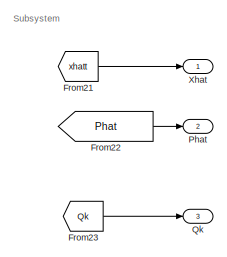
[diagram: Residual-Based/Subsystem - part 2/9, top right region]
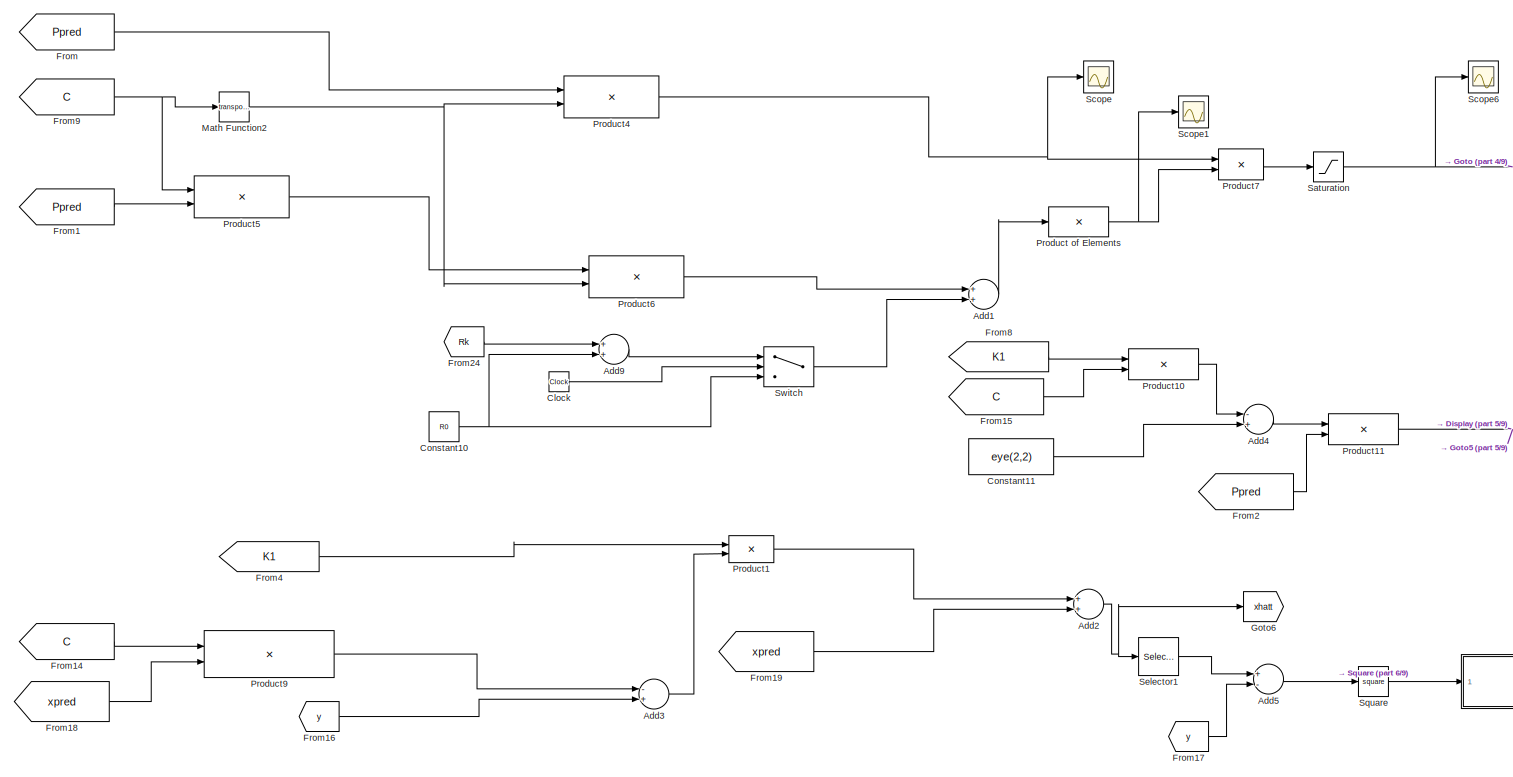
[diagram: Residual-Based/Subsystem - part 3/9, top center region]
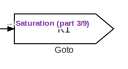
[diagram: Residual-Based/Subsystem - part 4/9, top right region]
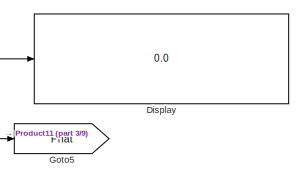
[diagram: Residual-Based/Subsystem - part 5/9, top right region]
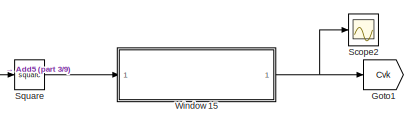
[diagram: Residual-Based/Subsystem - part 6/9, middle right region]
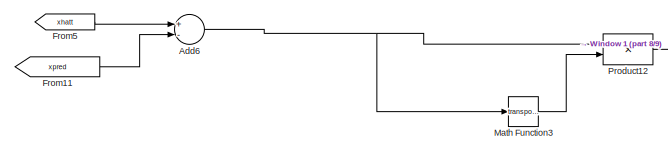
[diagram: Residual-Based/Subsystem - part 7/9, middle left region]
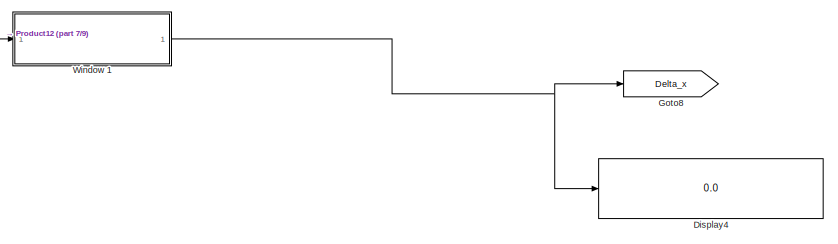
[diagram: Residual-Based/Subsystem - part 8/9, central region]
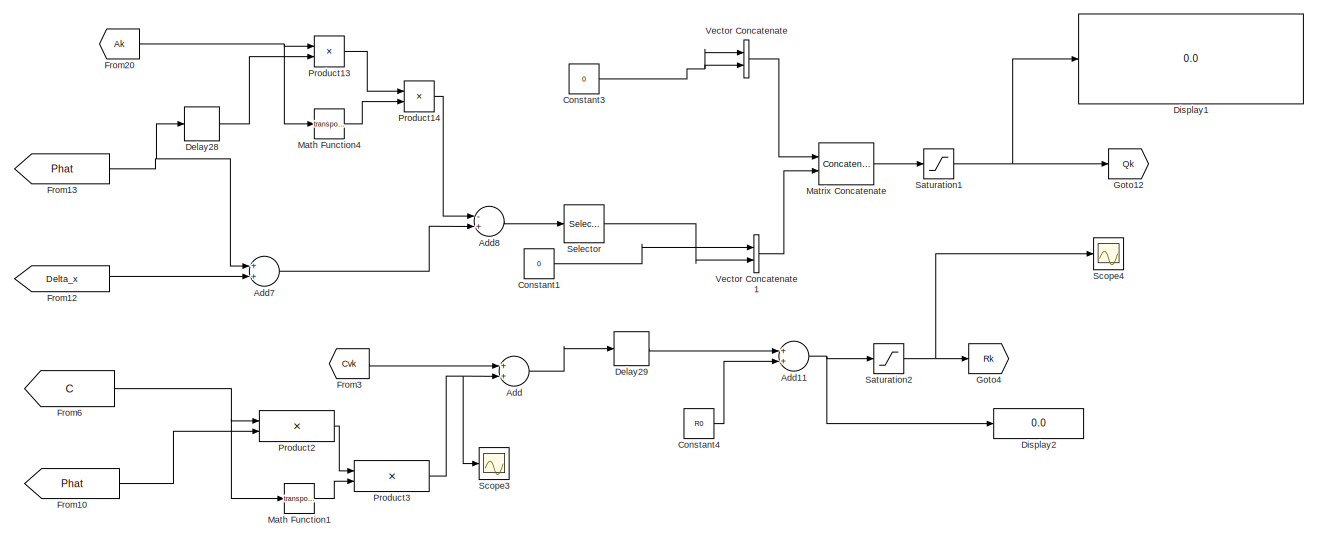
[diagram: Residual-Based/Subsystem - part 9/9, bottom center region]
BLOCK [SubSystem] Residual-Based/Subsystem
  Ports = [5, 3]
  RequestExecContextInheritance = off
BLOCK [Sum] Residual-Based/Subsystem/Add
  InputSameDT = off
  OutDataTypeStr = Inherit: Inherit via internal rule
  Ports = [2, 1]
  SaturateOnIntegerOverflow = off
BLOCK [Sum] Residual-Based/Subsystem/Add1
  InputSameDT = off
  OutDataTypeStr = Inherit: Inherit via internal rule
  Ports = [2, 1]
  SaturateOnIntegerOverflow = off
BLOCK [Sum] Residual-Based/Subsystem/Add11
  InputSameDT = off
  OutDataTypeStr = Inherit: Inherit via internal rule
  Ports = [2, 1]
  SaturateOnIntegerOverflow = off
BLOCK [Sum] Residual-Based/Subsystem/Add2
  InputSameDT = off
  OutDataTypeStr = Inherit: Inherit via internal rule
  Ports = [2, 1]
  SaturateOnIntegerOverflow = off
BLOCK [Sum] Residual-Based/Subsystem/Add3
  InputSameDT = off
  Inputs = -+
  OutDataTypeStr = Inherit: Inherit via internal rule
  Ports = [2, 1]
  SaturateOnIntegerOverflow = off
BLOCK [Sum] Residual-Based/Subsystem/Add4
  InputSameDT = off
  Inputs = -+
  OutDataTypeStr = Inherit: Inherit via internal rule
  Ports = [2, 1]
  SaturateOnIntegerOverflow = off
BLOCK [Sum] Residual-Based/Subsystem/Add5
  InputSameDT = off
  Inputs = +-
  OutDataTypeStr = Inherit: Inherit via internal rule
  Ports = [2, 1]
  SaturateOnIntegerOverflow = off
BLOCK [Sum] Residual-Based/Subsystem/Add6
  InputSameDT = off
  Inputs = +-
  OutDataTypeStr = Inherit: Inherit via internal rule
  Ports = [2, 1]
  SaturateOnIntegerOverflow = off
BLOCK [Sum] Residual-Based/Subsystem/Add7
  InputSameDT = off
  OutDataTypeStr = Inherit: Inherit via internal rule
  Ports = [2, 1]
  SaturateOnIntegerOverflow = off
BLOCK [Sum] Residual-Based/Subsystem/Add8
  InputSameDT = off
  Inputs = -+
  OutDataTypeStr = Inherit: Inherit via internal rule
  Ports = [2, 1]
  SaturateOnIntegerOverflow = off
BLOCK [Sum] Residual-Based/Subsystem/Add9
  InputSameDT = off
  OutDataTypeStr = Inherit: Inherit via internal rule
  Ports = [2, 1]
  SaturateOnIntegerOverflow = off
BLOCK [Inport] Residual-Based/Subsystem/Ak 
  IconDisplay = Port number
  Port = 5
BLOCK [Clock] Residual-Based/Subsystem/Clock
BLOCK [Constant] Residual-Based/Subsystem/Constant1
  Value = 0
BLOCK [Constant] Residual-Based/Subsystem/Constant10
  Value = R0
BLOCK [Constant] Residual-Based/Subsystem/Constant11
  Value = eye(2,2)
BLOCK [Constant] Residual-Based/Subsystem/Constant3
  Value = 0
BLOCK [Constant] Residual-Based/Subsystem/Constant4
  Value = R0
BLOCK [Delay] Residual-Based/Subsystem/Delay28
  DelayLength = 1
  InputPortMap = u0
  Ports = [1, 1]
BLOCK [Delay] Residual-Based/Subsystem/Delay29
  DelayLength = 1
  InputPortMap = u0
  Ports = [1, 1]
BLOCK [Display] Residual-Based/Subsystem/Display
  Decimation = 1
  Ports = [1]
BLOCK [Display] Residual-Based/Subsystem/Display1
  Decimation = 1
  Ports = [1]
BLOCK [Display] Residual-Based/Subsystem/Display2
  Decimation = 1
  Ports = [1]
BLOCK [Display] Residual-Based/Subsystem/Display4
  Decimation = 1
  Ports = [1]
BLOCK [From] Residual-Based/Subsystem/From
  GotoTag = Ppred
BLOCK [From] Residual-Based/Subsystem/From1
  GotoTag = Ppred
BLOCK [From] Residual-Based/Subsystem/From10
  GotoTag = Phat
BLOCK [From] Residual-Based/Subsystem/From11
  GotoTag = xpred
BLOCK [From] Residual-Based/Subsystem/From12
  GotoTag = Delta_x
BLOCK [From] Residual-Based/Subsystem/From13
  GotoTag = Phat
BLOCK [From] Residual-Based/Subsystem/From14
  GotoTag = C
BLOCK [From] Residual-Based/Subsystem/From15
  GotoTag = C
BLOCK [From] Residual-Based/Subsystem/From16
  GotoTag = y
BLOCK [From] Residual-Based/Subsystem/From17
  GotoTag = y
BLOCK [From] Residual-Based/Subsystem/From18
  GotoTag = xpred
BLOCK [From] Residual-Based/Subsystem/From19
  GotoTag = xpred
BLOCK [From] Residual-Based/Subsystem/From2
  GotoTag = Ppred
BLOCK [From] Residual-Based/Subsystem/From20
  GotoTag = Ak
BLOCK [From] Residual-Based/Subsystem/From21
  GotoTag = xhatt
BLOCK [From] Residual-Based/Subsystem/From22
  GotoTag = Phat
BLOCK [From] Residual-Based/Subsystem/From23
  GotoTag = Qk
BLOCK [From] Residual-Based/Subsystem/From24
  GotoTag = Rk
BLOCK [From] Residual-Based/Subsystem/From3
  GotoTag = Cvk
BLOCK [From] Residual-Based/Subsystem/From4
  GotoTag = K1
BLOCK [From] Residual-Based/Subsystem/From5
  GotoTag = xhatt
BLOCK [From] Residual-Based/Subsystem/From6
  GotoTag = C
BLOCK [From] Residual-Based/Subsystem/From8
  GotoTag = K1
BLOCK [From] Residual-Based/Subsystem/From9
  GotoTag = C
BLOCK [Goto] Residual-Based/Subsystem/Goto
  GotoTag = K1
BLOCK [Goto] Residual-Based/Subsystem/Goto1
  GotoTag = Cvk
BLOCK [Goto] Residual-Based/Subsystem/Goto10
  GotoTag = xpred
BLOCK [Goto] Residual-Based/Subsystem/Goto11
  GotoTag = Ak
BLOCK [Goto] Residual-Based/Subsystem/Goto12
  GotoTag = Qk
BLOCK [Goto] Residual-Based/Subsystem/Goto2
  GotoTag = Ppred
BLOCK [Goto] Residual-Based/Subsystem/Goto3
  GotoTag = C
BLOCK [Goto] Residual-Based/Subsystem/Goto4
  GotoTag = Rk
BLOCK [Goto] Residual-Based/Subsystem/Goto5
  GotoTag = Phat
BLOCK [Goto] Residual-Based/Subsystem/Goto6
  GotoTag = xhatt
BLOCK [Goto] Residual-Based/Subsystem/Goto8
  GotoTag = Delta_x
BLOCK [Goto] Residual-Based/Subsystem/Goto9
  GotoTag = y
BLOCK [Inport] Residual-Based/Subsystem/In1
  IconDisplay = Port number
BLOCK [Inport] Residual-Based/Subsystem/In2
  IconDisplay = Port number
  Port = 2
BLOCK [Math] Residual-Based/Subsystem/Math Function1
  Operator = transpose
  Ports = [1, 1]
BLOCK [Math] Residual-Based/Subsystem/Math Function2
  Operator = transpose
  Ports = [1, 1]
BLOCK [Math] Residual-Based/Subsystem/Math Function3
  Operator = transpose
  Ports = [1, 1]
BLOCK [Math] Residual-Based/Subsystem/Math Function4
  Operator = transpose
  Ports = [1, 1]
BLOCK [Concatenate] Residual-Based/Subsystem/Matrix Concatenate
  ConcatenateDimension = 2
  Mode = Multidimensional array
  Ports = [2, 1]
BLOCK [Outport] Residual-Based/Subsystem/Phat 
  IconDisplay = Port number
  Port = 2
BLOCK [Product] Residual-Based/Subsystem/Product of Elements
  InputSameDT = off
  Inputs = /
  Multiplication = Matrix(*)
  OutDataTypeStr = Inherit: Inherit via internal rule
  Ports = [1, 1]
  RndMeth = Floor
  SaturateOnIntegerOverflow = off
BLOCK [Product] Residual-Based/Subsystem/Product1
  InputSameDT = off
  Multiplication = Matrix(*)
  OutDataTypeStr = Inherit: Inherit via internal rule
  Ports = [2, 1]
  RndMeth = Floor
  SaturateOnIntegerOverflow = off
BLOCK [Product] Residual-Based/Subsystem/Product10
  InputSameDT = off
  Multiplication = Matrix(*)
  OutDataTypeStr = Inherit: Inherit via internal rule
  Ports = [2, 1]
  RndMeth = Floor
  SaturateOnIntegerOverflow = off
BLOCK [Product] Residual-Based/Subsystem/Product11
  InputSameDT = off
  Multiplication = Matrix(*)
  OutDataTypeStr = Inherit: Inherit via internal rule
  Ports = [2, 1]
  RndMeth = Floor
  SaturateOnIntegerOverflow = off
BLOCK [Product] Residual-Based/Subsystem/Product12
  InputSameDT = off
  Multiplication = Matrix(*)
  OutDataTypeStr = Inherit: Inherit via internal rule
  Ports = [2, 1]
  RndMeth = Floor
  SaturateOnIntegerOverflow = off
BLOCK [Product] Residual-Based/Subsystem/Product13
  InputSameDT = off
  Multiplication = Matrix(*)
  OutDataTypeStr = Inherit: Inherit via internal rule
  Ports = [2, 1]
  RndMeth = Floor
  SaturateOnIntegerOverflow = off
BLOCK [Product] Residual-Based/Subsystem/Product14
  InputSameDT = off
  Multiplication = Matrix(*)
  OutDataTypeStr = Inherit: Inherit via internal rule
  Ports = [2, 1]
  RndMeth = Floor
  SaturateOnIntegerOverflow = off
BLOCK [Product] Residual-Based/Subsystem/Product2
  InputSameDT = off
  Multiplication = Matrix(*)
  OutDataTypeStr = Inherit: Inherit via internal rule
  Ports = [2, 1]
  RndMeth = Floor
  SaturateOnIntegerOverflow = off
BLOCK [Product] Residual-Based/Subsystem/Product3
  InputSameDT = off
  Multiplication = Matrix(*)
  OutDataTypeStr = Inherit: Inherit via internal rule
  Ports = [2, 1]
  RndMeth = Floor
  SaturateOnIntegerOverflow = off
BLOCK [Product] Residual-Based/Subsystem/Product4
  InputSameDT = off
  Multiplication = Matrix(*)
  OutDataTypeStr = Inherit: Inherit via internal rule
  Ports = [2, 1]
  RndMeth = Floor
  SaturateOnIntegerOverflow = off
BLOCK [Product] Residual-Based/Subsystem/Product5
  InputSameDT = off
  Multiplication = Matrix(*)
  OutDataTypeStr = Inherit: Inherit via internal rule
  Ports = [2, 1]
  RndMeth = Floor
  SaturateOnIntegerOverflow = off
BLOCK [Product] Residual-Based/Subsystem/Product6
  InputSameDT = off
  Multiplication = Matrix(*)
  OutDataTypeStr = Inherit: Inherit via internal rule
  Ports = [2, 1]
  RndMeth = Floor
  SaturateOnIntegerOverflow = off
BLOCK [Product] Residual-Based/Subsystem/Product7
  InputSameDT = off
  Multiplication = Matrix(*)
  OutDataTypeStr = Inherit: Inherit via internal rule
  Ports = [2, 1]
  RndMeth = Floor
  SaturateOnIntegerOverflow = off
BLOCK [Product] Residual-Based/Subsystem/Product9
  InputSameDT = off
  Multiplication = Matrix(*)
  OutDataTypeStr = Inherit: Inherit via internal rule
  Ports = [2, 1]
  RndMeth = Floor
  SaturateOnIntegerOverflow = off
BLOCK [Outport] Residual-Based/Subsystem/Qk
  IconDisplay = Port number
  Port = 3
  PortDimensions = [2,2]
BLOCK [Saturate] Residual-Based/Subsystem/Saturation
  InputPortMap = u0
  LowerLimit = 0
  Ports = [1, 1]
  UpperLimit = 1
BLOCK [Saturate] Residual-Based/Subsystem/Saturation1
  InputPortMap = u0
  LowerLimit = 0
  Ports = [1, 1]
  UpperLimit = 1
BLOCK [Saturate] Residual-Based/Subsystem/Saturation2
  InputPortMap = u0
  LowerLimit = 0
  Ports = [1, 1]
  UpperLimit = 1
BLOCK [Scope] Residual-Based/Subsystem/Scope
  Floating = off
  NumInputPorts = 1
  Ports = [1]
  ScopeSpecificationString = Simulink.scopes.TimeScopeBlockCfg('CurrentConfiguration', extmgr.ConfigurationSet(extmgr.Configuration('Core','General UI',true),extmgr.Configuration('Core','Source UI',true),extmgr.Configuration('Sources','WiredSimulink',true,'DataLoggingVariableName','ScopeData3'),extmgr.Configuration('Visuals','Time Domain',true,'SerializedDisplays',{struct('MinYLimReal','-0.02666','MaxYLimReal','0.2264','YLabe...<+1403ch>
BLOCK [Scope] Residual-Based/Subsystem/Scope1
  Floating = off
  NumInputPorts = 1
  Ports = [1]
  ScopeSpecificationString = Simulink.scopes.TimeScopeBlockCfg('CurrentConfiguration', extmgr.ConfigurationSet(extmgr.Configuration('Core','General UI',true),extmgr.Configuration('Core','Source UI',true),extmgr.Configuration('Sources','WiredSimulink',true,'DataLoggingVariableName','ScopeData4'),extmgr.Configuration('Visuals','Time Domain',true,'SerializedDisplays',{struct('MinYLimReal','-57.4518','MaxYLimReal','526.65407','YL...<+1386ch>
BLOCK [Scope] Residual-Based/Subsystem/Scope2
  Floating = off
  NumInputPorts = 1
  Ports = [1]
  ScopeSpecificationString = Simulink.scopes.TimeScopeBlockCfg('CurrentConfiguration', extmgr.ConfigurationSet(extmgr.Configuration('Core','General UI',true),extmgr.Configuration('Core','Source UI',true),extmgr.Configuration('Sources','WiredSimulink',true,'DataLoggingVariableName','ScopeData7'),extmgr.Configuration('Visuals','Time Domain',true,'SerializedDisplays',{struct('MinYLimReal','-0.00528','MaxYLimReal','0.04752','YLab...<+1801ch>
BLOCK [Scope] Residual-Based/Subsystem/Scope3
  Floating = off
  NumInputPorts = 1
  Ports = [1]
  ScopeSpecificationString = Simulink.scopes.TimeScopeBlockCfg('CurrentConfiguration', extmgr.ConfigurationSet(extmgr.Configuration('Core','General UI',true),extmgr.Configuration('Core','Source UI',true),extmgr.Configuration('Sources','WiredSimulink',true,'DataLoggingVariableName','ScopeData12'),extmgr.Configuration('Visuals','Time Domain',true,'SerializedDisplays',{struct('MinYLimReal','-0.00012','MaxYLimReal','0.00112','YLa...<+1393ch>
BLOCK [Scope] Residual-Based/Subsystem/Scope4
  Floating = off
  NumInputPorts = 1
  Ports = [1]
  ScopeSpecificationString = Simulink.scopes.TimeScopeBlockCfg('CurrentConfiguration', extmgr.ConfigurationSet(extmgr.Configuration('Core','General UI',true),extmgr.Configuration('Core','Source UI',true),extmgr.Configuration('Sources','WiredSimulink',true,'DataLoggingVariableName','ScopeData5'),extmgr.Configuration('Visuals','Time Domain',true,'SerializedDisplays',{struct('MinYLimReal','-0.12275','MaxYLimReal','1.12475','YLab...<+1395ch>
BLOCK [Scope] Residual-Based/Subsystem/Scope6
  Floating = off
  NumInputPorts = 1
  Ports = [1]
  ScopeSpecificationString = Simulink.scopes.TimeScopeBlockCfg('CurrentConfiguration', extmgr.ConfigurationSet(extmgr.Configuration('Core','General UI',true),extmgr.Configuration('Core','Source UI',true),extmgr.Configuration('Sources','WiredSimulink',true,'DataLoggingVariableName','ScopeData15'),extmgr.Configuration('Visuals','Time Domain',true,'SerializedDisplays',{struct('MinYLimReal','-0.125','MaxYLimReal','1.125','YLabelR...<+1860ch>
BLOCK [Selector] Residual-Based/Subsystem/Selector
  IndexOptions = Index vector (dialog),Index vector (dialog)
  Indices = 2,2
  InputPortWidth = 3
  NumberOfDimensions = 2
  OutputSizes = 1,1
  Ports = [1, 1]
BLOCK [Selector] Residual-Based/Subsystem/Selector1
  IndexOptions = Index vector (dialog)
  Indices = 1
  InputPortWidth = 2
  OutputSizes = 1
  Ports = [1, 1]
BLOCK [Math] Residual-Based/Subsystem/Square
  Operator = square
  Ports = [1, 1]
BLOCK [Switch] Residual-Based/Subsystem/Switch
  Criteria = u2 > Threshold
  InputSameDT = off
  SaturateOnIntegerOverflow = off
  Threshold = 20*Ts
BLOCK [Concatenate] Residual-Based/Subsystem/Vector Concatenate
  Ports = [2, 1]
BLOCK [Concatenate] Residual-Based/Subsystem/Vector Concatenate1
  Ports = [2, 1]
BLOCK [SubSystem] Residual-Based/Subsystem/Window 1
  Ports = [1, 1]
  RequestExecContextInheritance = off
BLOCK [Sum] Residual-Based/Subsystem/Window 1/Add9
  InputSameDT = off
  Inputs = 20
  OutDataTypeStr = Inherit: Inherit via internal rule
  Ports = [20, 1]
  SaturateOnIntegerOverflow = off
BLOCK [Constant] Residual-Based/Subsystem/Window 1/Constant2
  Value = 20
BLOCK [Delay] Residual-Based/Subsystem/Window 1/Delay14
  DelayLength = 1
  InputPortMap = u0
  Ports = [1, 1]
  SampleTime = Ts
BLOCK [Delay] Residual-Based/Subsystem/Window 1/Delay15
  InputPortMap = u0
  Ports = [1, 1]
  SampleTime = Ts
BLOCK [Delay] Residual-Based/Subsystem/Window 1/Delay16
  DelayLength = 14
  InputPortMap = u0
  Ports = [1, 1]
  SampleTime = Ts
BLOCK [Delay] Residual-Based/Subsystem/Window 1/Delay17
  DelayLength = 11
  InputPortMap = u0
  Ports = [1, 1]
  SampleTime = Ts
BLOCK [Delay] Residual-Based/Subsystem/Window 1/Delay18
  DelayLength = 12
  InputPortMap = u0
  Ports = [1, 1]
  SampleTime = Ts
BLOCK [Delay] Residual-Based/Subsystem/Window 1/Delay19
  DelayLength = 13
  InputPortMap = u0
  Ports = [1, 1]
  SampleTime = Ts
BLOCK [Delay] Residual-Based/Subsystem/Window 1/Delay20
  DelayLength = 3
  InputPortMap = u0
  Ports = [1, 1]
  SampleTime = Ts
BLOCK [Delay] Residual-Based/Subsystem/Window 1/Delay21
  DelayLength = 4
  InputPortMap = u0
  Ports = [1, 1]
  SampleTime = Ts
BLOCK [Delay] Residual-Based/Subsystem/Window 1/Delay22
  DelayLength = 5
  InputPortMap = u0
  Ports = [1, 1]
  SampleTime = Ts
BLOCK [Delay] Residual-Based/Subsystem/Window 1/Delay23
  DelayLength = 6
  InputPortMap = u0
  Ports = [1, 1]
  SampleTime = Ts
BLOCK [Delay] Residual-Based/Subsystem/Window 1/Delay24
  DelayLength = 7
  InputPortMap = u0
  Ports = [1, 1]
  SampleTime = Ts
BLOCK [Delay] Residual-Based/Subsystem/Window 1/Delay25
  DelayLength = 8
  InputPortMap = u0
  Ports = [1, 1]
  SampleTime = Ts
BLOCK [Delay] Residual-Based/Subsystem/Window 1/Delay26
  DelayLength = 9
  InputPortMap = u0
  Ports = [1, 1]
  SampleTime = Ts
BLOCK [Delay] Residual-Based/Subsystem/Window 1/Delay27
  DelayLength = 10
  InputPortMap = u0
  Ports = [1, 1]
  SampleTime = Ts
BLOCK [Delay] Residual-Based/Subsystem/Window 1/Delay30
  DelayLength = 15
  InputPortMap = u0
  Ports = [1, 1]
  SampleTime = Ts
BLOCK [Delay] Residual-Based/Subsystem/Window 1/Delay31
  DelayLength = 16
  InputPortMap = u0
  Ports = [1, 1]
  SampleTime = Ts
BLOCK [Delay] Residual-Based/Subsystem/Window 1/Delay32
  DelayLength = 17
  InputPortMap = u0
  Ports = [1, 1]
  SampleTime = Ts
BLOCK [Delay] Residual-Based/Subsystem/Window 1/Delay33
  DelayLength = 18
  InputPortMap = u0
  Ports = [1, 1]
  SampleTime = Ts
BLOCK [Delay] Residual-Based/Subsystem/Window 1/Delay34
  DelayLength = 19
  InputPortMap = u0
  Ports = [1, 1]
  SampleTime = Ts
BLOCK [Product] Residual-Based/Subsystem/Window 1/Divide1
  InputSameDT = off
  Inputs = */
  OutDataTypeStr = Inherit: Inherit via internal rule
  Ports = [2, 1]
  RndMeth = Floor
  SaturateOnIntegerOverflow = off
BLOCK [Inport] Residual-Based/Subsystem/Window 1/In1
  IconDisplay = Port number
BLOCK [Outport] Residual-Based/Subsystem/Window 1/Out1
  IconDisplay = Port number
BLOCK [SubSystem] Residual-Based/Subsystem/Window 15
  Ports = [1, 1]
  RequestExecContextInheritance = off
BLOCK [Sum] Residual-Based/Subsystem/Window 15/Add9
  InputSameDT = off
  Inputs = 20
  OutDataTypeStr = Inherit: Inherit via internal rule
  Ports = [20, 1]
  SaturateOnIntegerOverflow = off
BLOCK [Constant] Residual-Based/Subsystem/Window 15/Constant2
  Value = 20
BLOCK [Delay] Residual-Based/Subsystem/Window 15/Delay14
  DelayLength = 1
  InputPortMap = u0
  Ports = [1, 1]
  SampleTime = Ts
BLOCK [Delay] Residual-Based/Subsystem/Window 15/Delay15
  InputPortMap = u0
  Ports = [1, 1]
  SampleTime = Ts
BLOCK [Delay] Residual-Based/Subsystem/Window 15/Delay16
  DelayLength = 14
  InputPortMap = u0
  Ports = [1, 1]
  SampleTime = Ts
BLOCK [Delay] Residual-Based/Subsystem/Window 15/Delay17
  DelayLength = 11
  InputPortMap = u0
  Ports = [1, 1]
  SampleTime = Ts
BLOCK [Delay] Residual-Based/Subsystem/Window 15/Delay18
  DelayLength = 12
  InputPortMap = u0
  Ports = [1, 1]
  SampleTime = Ts
BLOCK [Delay] Residual-Based/Subsystem/Window 15/Delay19
  DelayLength = 13
  InputPortMap = u0
  Ports = [1, 1]
  SampleTime = Ts
BLOCK [Delay] Residual-Based/Subsystem/Window 15/Delay20
  DelayLength = 3
  InputPortMap = u0
  Ports = [1, 1]
  SampleTime = Ts
BLOCK [Delay] Residual-Based/Subsystem/Window 15/Delay21
  DelayLength = 4
  InputPortMap = u0
  Ports = [1, 1]
  SampleTime = Ts
BLOCK [Delay] Residual-Based/Subsystem/Window 15/Delay22
  DelayLength = 5
  InputPortMap = u0
  Ports = [1, 1]
  SampleTime = Ts
BLOCK [Delay] Residual-Based/Subsystem/Window 15/Delay23
  DelayLength = 6
  InputPortMap = u0
  Ports = [1, 1]
  SampleTime = Ts
BLOCK [Delay] Residual-Based/Subsystem/Window 15/Delay24
  DelayLength = 7
  InputPortMap = u0
  Ports = [1, 1]
  SampleTime = Ts
BLOCK [Delay] Residual-Based/Subsystem/Window 15/Delay25
  DelayLength = 8
  InputPortMap = u0
  Ports = [1, 1]
  SampleTime = Ts
BLOCK [Delay] Residual-Based/Subsystem/Window 15/Delay26
  DelayLength = 9
  InputPortMap = u0
  Ports = [1, 1]
  SampleTime = Ts
BLOCK [Delay] Residual-Based/Subsystem/Window 15/Delay27
  DelayLength = 10
  InputPortMap = u0
  Ports = [1, 1]
  SampleTime = Ts
BLOCK [Delay] Residual-Based/Subsystem/Window 15/Delay30
  DelayLength = 15
  InputPortMap = u0
  Ports = [1, 1]
  SampleTime = Ts
BLOCK [Delay] Residual-Based/Subsystem/Window 15/Delay31
  DelayLength = 16
  InputPortMap = u0
  Ports = [1, 1]
  SampleTime = Ts
BLOCK [Delay] Residual-Based/Subsystem/Window 15/Delay32
  DelayLength = 17
  InputPortMap = u0
  Ports = [1, 1]
  SampleTime = Ts
BLOCK [Delay] Residual-Based/Subsystem/Window 15/Delay33
  DelayLength = 18
  InputPortMap = u0
  Ports = [1, 1]
  SampleTime = Ts
BLOCK [Delay] Residual-Based/Subsystem/Window 15/Delay34
  DelayLength = 19
  InputPortMap = u0
  Ports = [1, 1]
  SampleTime = Ts
BLOCK [Product] Residual-Based/Subsystem/Window 15/Divide1
  InputSameDT = off
  Inputs = */
  OutDataTypeStr = Inherit: Inherit via internal rule
  Ports = [2, 1]
  RndMeth = Floor
  SaturateOnIntegerOverflow = off
BLOCK [Inport] Residual-Based/Subsystem/Window 15/In1
  IconDisplay = Port number
BLOCK [Outport] Residual-Based/Subsystem/Window 15/Out1
  IconDisplay = Port number
BLOCK [Outport] Residual-Based/Subsystem/Xhat
  IconDisplay = Port number
  PortDimensions = [2,1]
BLOCK [Inport] Residual-Based/Subsystem/Xpred
  IconDisplay = Port number
  Port = 3
BLOCK [Inport] Residual-Based/Subsystem/Y 
  IconDisplay = Port number
  Port = 4
BLOCK [SubSystem] Residual-Based/Subsystem1
  Ports = [3, 4]
  RequestExecContextInheritance = off
BLOCK [Concatenate] Residual-Based/Subsystem1/A
  ConcatenateDimension = 2
  Mode = Multidimensional array
  Ports = [2, 1]
BLOCK [Sum] Residual-Based/Subsystem1/Add
  InputSameDT = off
  OutDataTypeStr = Inherit: Inherit via internal rule
  Ports = [2, 1]
  SaturateOnIntegerOverflow = off
BLOCK [Sum] Residual-Based/Subsystem1/Add1
  InputSameDT = off
  OutDataTypeStr = Inherit: Inherit via internal rule
  Ports = [2, 1]
  SaturateOnIntegerOverflow = off
BLOCK [Sum] Residual-Based/Subsystem1/Add2
  InputSameDT = off
  OutDataTypeStr = Inherit: Inherit via internal rule
  Ports = [2, 1]
  SaturateOnIntegerOverflow = off
BLOCK [Outport] Residual-Based/Subsystem1/Ak
  IconDisplay = Port number
  Port = 4
BLOCK [Outport] Residual-Based/Subsystem1/C 
  IconDisplay = Port number
  Port = 3
BLOCK [Clock] Residual-Based/Subsystem1/Clock
  Decimation = 1000
  DisplayTime = on
BLOCK [Constant] Residual-Based/Subsystem1/Constant
  Value = -g/l
BLOCK [Constant] Residual-Based/Subsystem1/Constant1
  Value = 0
BLOCK [Constant] Residual-Based/Subsystem1/Constant10
  Value = Ts
BLOCK [Constant] Residual-Based/Subsystem1/Constant2
  Value = eye(2,2)
BLOCK [Constant] Residual-Based/Subsystem1/Constant3
  Value = 0
BLOCK [Constant] Residual-Based/Subsystem1/Constant4
  Value = 0
BLOCK [Constant] Residual-Based/Subsystem1/Constant5
BLOCK [Constant] Residual-Based/Subsystem1/Constant6
  Value = 0
BLOCK [Constant] Residual-Based/Subsystem1/Constant7
  Value = Q0
BLOCK [Constant] Residual-Based/Subsystem1/Constant8
BLOCK [Constant] Residual-Based/Subsystem1/Constant9
  Value = 0
BLOCK [From] Residual-Based/Subsystem1/From
  GotoTag = Ak
BLOCK [From] Residual-Based/Subsystem1/From1
  GotoTag = A1
BLOCK [From] Residual-Based/Subsystem1/From2
  GotoTag = xhat_1
BLOCK [From] Residual-Based/Subsystem1/From3
  GotoTag = xhat_1
BLOCK [From] Residual-Based/Subsystem1/From4
  GotoTag = phat_1
BLOCK [From] Residual-Based/Subsystem1/From5
  GotoTag = Qk
BLOCK [From] Residual-Based/Subsystem1/From6
  GotoTag = xpred
BLOCK [From] Residual-Based/Subsystem1/From7
  GotoTag = Ppred
BLOCK [From] Residual-Based/Subsystem1/From8
  GotoTag = Ck
BLOCK [From] Residual-Based/Subsystem1/From9
  GotoTag = Ak
BLOCK [Goto] Residual-Based/Subsystem1/Goto
  GotoTag = A1
BLOCK [Goto] Residual-Based/Subsystem1/Goto1
  GotoTag = Ak
BLOCK [Goto] Residual-Based/Subsystem1/Goto2
  GotoTag = xhat_1
BLOCK [Goto] Residual-Based/Subsystem1/Goto3
  GotoTag = phat_1
BLOCK [Goto] Residual-Based/Subsystem1/Goto4
  GotoTag = Qk
BLOCK [Goto] Residual-Based/Subsystem1/Goto5
  GotoTag = xpred
BLOCK [Goto] Residual-Based/Subsystem1/Goto6
  GotoTag = Ppred
BLOCK [Goto] Residual-Based/Subsystem1/Goto7
  GotoTag = Ck
BLOCK [SubSystem] Residual-Based/Subsystem1/MATLAB Function
  ErrorFcn = Stateflow.Translate.translate
  PermitHierarchicalResolution = ExplicitOnly
  Ports = [2, 1]
  RequestExecContextInheritance = off
  SFBlockType = MATLAB Function
  TreatAsAtomicUnit = on
BLOCK [Demux] Residual-Based/Subsystem1/MATLAB Function/ Demux 
  Outputs = 1
  Ports = [1, 1]
BLOCK [S-Function] Residual-Based/Subsystem1/MATLAB Function/ SFunction 
  EnableBusSupport = on
  FunctionName = sf_sfun
  PortCounts = [2 2]
  Ports = [2, 2]
  SFcnIsStateOwnerBlock = off
  SFunctionDeploymentMode = off
  Tag = Stateflow S-Function Kalman_Filter_Simulink_Example_adap_SMNSF 1
BLOCK [Terminator] Residual-Based/Subsystem1/MATLAB Function/ Terminator 
BLOCK [Inport] Residual-Based/Subsystem1/MATLAB Function/u
  IconDisplay = Port number
  Port = 2
BLOCK [Inport] Residual-Based/Subsystem1/MATLAB Function/x
  IconDisplay = Port number
BLOCK [Outport] Residual-Based/Subsystem1/MATLAB Function/y
  IconDisplay = Port number
BLOCK [Math] Residual-Based/Subsystem1/Math Function
  Operator = transpose
  Ports = [1, 1]
BLOCK [Math] Residual-Based/Subsystem1/Math Function1
  Operator = transpose
  Ports = [1, 1]
BLOCK [Outport] Residual-Based/Subsystem1/Ppred
  IconDisplay = Port number
  Port = 2
BLOCK [Product] Residual-Based/Subsystem1/Product
  InputSameDT = off
  OutDataTypeStr = Inherit: Inherit via internal rule
  Ports = [2, 1]
  RndMeth = Floor
  SaturateOnIntegerOverflow = off
BLOCK [Product] Residual-Based/Subsystem1/Product1
  InputSameDT = off
  OutDataTypeStr = Inherit: Inherit via internal rule
  Ports = [2, 1]
  RndMeth = Floor
  SaturateOnIntegerOverflow = off
BLOCK [Product] Residual-Based/Subsystem1/Product2
  InputSameDT = off
  Multiplication = Matrix(*)
  OutDataTypeStr = Inherit: Inherit via internal rule
  Ports = [2, 1]
  RndMeth = Floor
  SaturateOnIntegerOverflow = off
BLOCK [Product] Residual-Based/Subsystem1/Product3
  InputSameDT = off
  Multiplication = Matrix(*)
  OutDataTypeStr = Inherit: Inherit via internal rule
  Ports = [2, 1]
  RndMeth = Floor
  SaturateOnIntegerOverflow = off
BLOCK [Concatenate] Residual-Based/Subsystem1/Q
  ConcatenateDimension = 2
  Mode = Multidimensional array
  Ports = [2, 1]
BLOCK [Inport] Residual-Based/Subsystem1/Qk 
  IconDisplay = Port number
  Port = 3
BLOCK [Scope] Residual-Based/Subsystem1/Scope
  Floating = off
  NumInputPorts = 1
  Ports = [1]
  ScopeSpecificationString = Simulink.scopes.TimeScopeBlockCfg('CurrentConfiguration', extmgr.ConfigurationSet(extmgr.Configuration('Core','General UI',true),extmgr.Configuration('Core','Source UI',true),extmgr.Configuration('Sources','WiredSimulink',true,'DataLoggingVariableName','ScopeData1'),extmgr.Configuration('Visuals','Time Domain',true,'SerializedDisplays',{struct('MinYLimReal','-8.38219','MaxYLimReal','75.43968','YLa...<+1729ch>
BLOCK [Selector] Residual-Based/Subsystem1/Selector2
  IndexOptions = Index vector (dialog)
  Indices = 1
  InputPortWidth = 2
  OutputSizes = 1
  Ports = [1, 1]
BLOCK [Switch] Residual-Based/Subsystem1/Switch
  Criteria = u2 > Threshold
  InputSameDT = off
  SaturateOnIntegerOverflow = off
  Threshold = 20*Ts
BLOCK [Trigonometry] Residual-Based/Subsystem1/Trigonometric Function
  Operator = cos
  Ports = [1, 1]
BLOCK [Concatenate] Residual-Based/Subsystem1/Vector Concatenate
  Ports = [2, 1]
BLOCK [Concatenate] Residual-Based/Subsystem1/Vector Concatenate1
  Ports = [2, 1]
BLOCK [Concatenate] Residual-Based/Subsystem1/Vector Concatenate2
  Ports = [2, 1]
BLOCK [Concatenate] Residual-Based/Subsystem1/Vector Concatenate3
  Ports = [2, 1]
BLOCK [Concatenate] Residual-Based/Subsystem1/Vector Concatenate4
  Ports = [2, 1]
BLOCK [Inport] Residual-Based/Subsystem1/phat_1
  IconDisplay = Port number
  Port = 2
BLOCK [Inport] Residual-Based/Subsystem1/xhat_1
  IconDisplay = Port number
BLOCK [Outport] Residual-Based/Subsystem1/xpred
  IconDisplay = Port number
BLOCK [Outport] Residual-Based/xhat1
  IconDisplay = Port number
BLOCK [Inport] Residual-Based/xhat_1
  IconDisplay = Port number
BLOCK [Inport] Residual-Based/y1
  IconDisplay = Port number
  Port = 3
BLOCK [Scope] Scope
  Floating = off
  IOType = viewer
  NumInputPorts = 1
  Ports = []
  ScopeSpecificationString = Simulink.scopes.TimeScopeBlockCfg('CurrentConfiguration', extmgr.ConfigurationSet(extmgr.Configuration('Core','General UI',true,'FigureColor',[0.941176470588235 0.941176470588235 0.941176470588235]),extmgr.Configuration('Core','Source UI',true),extmgr.Configuration('Sources','WiredSimulink',true),extmgr.Configuration('Visuals','Time Domain',true,'SerializedDisplays',{struct('MinYLimReal','-5.48151...<+2461ch>
BLOCK [Scope] Scope5
  Floating = off
  NumInputPorts = 1
  Ports = [1]
  ScopeSpecificationString = Simulink.scopes.TimeScopeBlockCfg('CurrentConfiguration', extmgr.ConfigurationSet(extmgr.Configuration('Core','General UI',true),extmgr.Configuration('Core','Source UI',true),extmgr.Configuration('Sources','WiredSimulink',true,'DataLoggingVariableName','ScopeData16'),extmgr.Configuration('Visuals','Time Domain',true,'SerializedDisplays',{struct('MinYLimReal','-1.26839','MaxYLimReal','1.26706','YLa...<+1543ch>
BLOCK [Selector] Selector
  IndexOptions = Index vector (dialog)
  Indices = 1
  InputPortWidth = 2
  OutputSizes = 1
  Ports = [1, 1]
BLOCK [Selector] Selector1
  IndexOptions = Index vector (dialog)
  Indices = 1
  InputPortWidth = 2
  OutputSizes = 1
  Ports = [1, 1]
BLOCK [Selector] Selector2
  IndexOptions = Index vector (dialog)
  Indices = 2
  InputPortWidth = 2
  OutputSizes = 1
  Ports = [1, 1]
BLOCK [Selector] Selector3
  IndexOptions = Index vector (dialog)
  Indices = 2
  InputPortWidth = 2
  OutputSizes = 1
  Ports = [1, 1]
BLOCK [Selector] Selector4
  IndexOptions = Index vector (dialog)
  Indices = 1
  InputPortWidth = 2
  OutputSizes = 1
  Ports = [1, 1]
BLOCK [Selector] Selector5
  IndexOptions = Index vector (dialog)
  Indices = 2
  InputPortWidth = 2
  OutputSizes = 1
  Ports = [1, 1]
BLOCK [Selector] Selector6
  IndexOptions = Index vector (dialog),Index vector (dialog)
  Indices = 1,1
  InputPortWidth = 3
  NumberOfDimensions = 2
  OutputSizes = 1,1
  Ports = [1, 1]
BLOCK [Sum] Sum
  IconShape = round
  InputSameDT = off
  Inputs = ++|
  OutDataTypeStr = Inherit: Inherit via internal rule
  Ports = [2, 1]
  SaturateOnIntegerOverflow = off
BLOCK [Sum] Sum1
  IconShape = round
  InputSameDT = off
  Inputs = ++|
  OutDataTypeStr = Inherit: Inherit via internal rule
  Ports = [2, 1]
  SaturateOnIntegerOverflow = off
BLOCK [Switch] Switch
  InputSameDT = off
  SaturateOnIntegerOverflow = off
  Threshold = Ts
BLOCK [Switch] Switch1
  InputSameDT = off
  SaturateOnIntegerOverflow = off
  Threshold = Ts
BLOCK [Switch] Switch3
  InputSameDT = off
  SaturateOnIntegerOverflow = off
  Threshold = Ts
BLOCK [Switch] Switch4
  InputSameDT = off
  SaturateOnIntegerOverflow = off
  Threshold = Ts
BLOCK [Switch] Switch5
  Criteria = u2 > Threshold
  InputSameDT = off
  SaturateOnIntegerOverflow = off
  Threshold = 40
BLOCK [Terminator] Terminator
BLOCK [Scope] Theta4
  Floating = off
  NumInputPorts = 1
  Ports = [1]
  ScopeSpecificationString = Simulink.scopes.TimeScopeBlockCfg('CurrentConfiguration', extmgr.ConfigurationSet(extmgr.Configuration('Core','General UI',true,'FigureColor',[0 0 0]),extmgr.Configuration('Core','Source UI',true),extmgr.Configuration('Sources','WiredSimulink',true,'DataLoggingVariableName','ScopeData8'),extmgr.Configuration('Visuals','Time Domain',true,'SerializedDisplays',{struct('MinYLimReal','-3.46566','MaxYLi...<+2092ch>
BLOCK [Scope] Theta5
  Floating = off
  NumInputPorts = 1
  Ports = [1]
  ScopeSpecificationString = Simulink.scopes.TimeScopeBlockCfg('CurrentConfiguration', extmgr.ConfigurationSet(extmgr.Configuration('Core','General UI',true),extmgr.Configuration('Core','Source UI',true),extmgr.Configuration('Sources','WiredSimulink',true,'DataLoggingVariableName','ScopeData9'),extmgr.Configuration('Visuals','Time Domain',true,'SerializedDisplays',{struct('MinYLimReal','-7.30276','MaxYLimReal','7.53868','YLab...<+1624ch>
BLOCK [Constant] Torque
  Value = 0
BLOCK [Concatenate] Vector Concatenate1
  Ports = [2, 1]
BLOCK [Concatenate] Vector Concatenate5
  Ports = [2, 1]
BLOCK [ZeroOrderHold] Zero-Order Hold
  SampleTime = Ts
BLOCK [ZeroOrderHold] Zero-Order Hold1
  SampleTime = Ts
BLOCK [ZeroOrderHold] Zero-Order Hold2
  SampleTime = Ts
ANNOTATION (root): <copyright redacted>
ANNOTATION (root): Input
ANNOTATION (root): Monitor
ANNOTATION (root): Subsystem
ANNOTATION Innovation-Based: Prediction
ANNOTATION Innovation-Based: Update
ANNOTATION Innovation-Based/Subsystem: Subsystem
ANNOTATION Innovation-Based/Subsystem1: Subsystem
ANNOTATION Residual-Based: Prediction
ANNOTATION Residual-Based: Update
ANNOTATION Residual-Based/Subsystem: Subsystem
ANNOTATION Residual-Based/Subsystem1: Subsystem
LINE Add1:1 -> Mux:2
LINE Add2:1 -> Mux:3
NET Clock2:1 -> Switch3:2, Switch4:2
LINE Clock3:1 -> Switch5:2
NET Clock:1 -> Switch1:2, Switch:2
LINE Constant12:1 -> Vector Concatenate5:2
LINE Constant1:1 -> Vector Concatenate5:1
LINE Constant2:1 -> Switch1:3
LINE Constant3:1 -> Vector Concatenate1:1
LINE Constant4:1 -> Vector Concatenate1:2
LINE Constant5:1 -> Switch4:3
LINE Delay2:1 -> Goto4:1
LINE Delay3:1 -> Goto3:1
LINE Delay4:1 -> Goto8:1
LINE Delay5:1 -> Goto6:1
NET Extended Kalman Filter:1 -> Selector3:1, Selector:1
LINE Extended Kalman Filter:2 -> Terminator:1
LINE Freeze:1 -> Goto2:1
LINE From11:1 -> Innovation-Based:1
LINE From12:1 -> Innovation-Based:2
LINE From13:1 -> Switch1:1
LINE From16:1 -> Mux3:2
LINE From18:1 -> Mux2:5
LINE From19:1 -> Mux3:3
LINE From20:1 -> Mux3:4
LINE From21:1 -> Mux2:3
LINE From22:1 -> Mux2:2
LINE From23:1 -> Mux2:1
LINE From24:1 -> Mux2:4
LINE From25:1 -> Mux3:1
LINE From26:1 -> Residual-Based:2
LINE From27:1 -> Sum:2
LINE From28:1 -> Switch3:1
LINE From29:1 -> Sum1:2
LINE From2:1 -> Residual-Based:1
LINE From30:1 -> Zero-Order Hold:1
LINE From31:1 -> Zero-Order Hold2:1
LINE From32:1 -> Zero-Order Hold1:1
LINE From3:1 -> Residual-Based:3
LINE From4:1 -> Innovation-Based:3
LINE From5:1 -> Selector6:1
NET From6:1 -> Add1:1, Add2:1, Mux:1
LINE From7:1 -> Switch4:1
LINE From:1 -> Switch:1
LINE Gain1:1 -> Add2:2
LINE Gain:1 -> Add1:2
LINE Innovation-Based/Delay2:1 -> Innovation-Based/Goto16:1
LINE Innovation-Based/From16:1 -> Innovation-Based/Subsystem1:3
LINE Innovation-Based/From1:1 -> Innovation-Based/Subsystem:1
LINE Innovation-Based/From2:1 -> Innovation-Based/Subsystem:2
LINE Innovation-Based/From3:1 -> Innovation-Based/Subsystem:3
LINE Innovation-Based/Phat_1:1 -> Innovation-Based/Subsystem1:2
LINE Innovation-Based/Subsystem/Add1:1 -> Innovation-Based/Subsystem/Product of Elements:1
LINE Innovation-Based/Subsystem/Add2:1 -> Innovation-Based/Subsystem/Goto9:1
NET Innovation-Based/Subsystem/Add3:1 -> Innovation-Based/Subsystem/Product8:2, Innovation-Based/Subsystem/Square:1
LINE Innovation-Based/Subsystem/Add4:1 -> Innovation-Based/Subsystem/Product11:1
LINE Innovation-Based/Subsystem/Add6:1 -> Innovation-Based/Subsystem/Add1:2
LINE Innovation-Based/Subsystem/Add:1 -> Innovation-Based/Subsystem/Delay:1
LINE Innovation-Based/Subsystem/C:1 -> Innovation-Based/Subsystem/Goto3:1
LINE Innovation-Based/Subsystem/Constant10:1 -> Innovation-Based/Subsystem/Add6:2
LINE Innovation-Based/Subsystem/Constant11:1 -> Innovation-Based/Subsystem/Add4:2
LINE Innovation-Based/Subsystem/Constant1:1 -> Innovation-Based/Subsystem/Vector Concatenate:2
LINE Innovation-Based/Subsystem/Constant2:1 -> Innovation-Based/Subsystem/Vector Concatenate1:1
LINE Innovation-Based/Subsystem/Constant:1 -> Innovation-Based/Subsystem/Vector Concatenate:1
NET Innovation-Based/Subsystem/Delay:1 -> Innovation-Based/Subsystem/Goto4:1, Innovation-Based/Subsystem/Scope3:1
LINE Innovation-Based/Subsystem/From10:1 -> Innovation-Based/Subsystem/Product4:1
LINE Innovation-Based/Subsystem/From11:1 -> Innovation-Based/Subsystem/Product11:2
NET Innovation-Based/Subsystem/From12:1 -> Innovation-Based/Subsystem/Math Function2:1, Innovation-Based/Subsystem/Product5:1
LINE Innovation-Based/Subsystem/From13:1 -> Innovation-Based/Subsystem/Product9:1
LINE Innovation-Based/Subsystem/From14:1 -> Innovation-Based/Subsystem/Product10:2
LINE Innovation-Based/Subsystem/From15:1 -> Innovation-Based/Subsystem/Add3:2
LINE Innovation-Based/Subsystem/From16:1 -> Innovation-Based/Subsystem/Product9:2
LINE Innovation-Based/Subsystem/From17:1 -> Innovation-Based/Subsystem/Add2:2
LINE Innovation-Based/Subsystem/From18:1 -> Innovation-Based/Subsystem/Phat :1
LINE Innovation-Based/Subsystem/From19:1 -> Innovation-Based/Subsystem/Qk:1
NET Innovation-Based/Subsystem/From1:1 -> Innovation-Based/Subsystem/Math Function3:1, Innovation-Based/Subsystem/Product:1
LINE Innovation-Based/Subsystem/From20:1 -> Innovation-Based/Subsystem/Xhat:1
LINE Innovation-Based/Subsystem/From3:1 -> Innovation-Based/Subsystem/Add:1
LINE Innovation-Based/Subsystem/From4:1 -> Innovation-Based/Subsystem/Product8:1
LINE Innovation-Based/Subsystem/From5:1 -> Innovation-Based/Subsystem/Product2:2
NET Innovation-Based/Subsystem/From6:1 -> Innovation-Based/Subsystem/Math Function1:1, Innovation-Based/Subsystem/Product2:1
LINE Innovation-Based/Subsystem/From7:1 -> Innovation-Based/Subsystem/Add6:1
LINE Innovation-Based/Subsystem/From8:1 -> Innovation-Based/Subsystem/Product10:1
LINE Innovation-Based/Subsystem/From9:1 -> Innovation-Based/Subsystem/Product5:2
LINE Innovation-Based/Subsystem/From:1 -> Innovation-Based/Subsystem/Product:2
LINE Innovation-Based/Subsystem/Math Function1:1 -> Innovation-Based/Subsystem/Product3:2
NET Innovation-Based/Subsystem/Math Function2:1 -> Innovation-Based/Subsystem/Product4:2, Innovation-Based/Subsystem/Product6:2
LINE Innovation-Based/Subsystem/Math Function3:1 -> Innovation-Based/Subsystem/Product1:2
NET Innovation-Based/Subsystem/Matrix Concatenate1:1 -> Innovation-Based/Subsystem/Display:1, Innovation-Based/Subsystem/Goto7:1
LINE Innovation-Based/Subsystem/Ppred:1 -> Innovation-Based/Subsystem/Goto2:1
LINE Innovation-Based/Subsystem/Product of Elements:1 -> Innovation-Based/Subsystem/Product7:2
LINE Innovation-Based/Subsystem/Product10:1 -> Innovation-Based/Subsystem/Add4:1
NET Innovation-Based/Subsystem/Product11:1 -> Innovation-Based/Subsystem/Selector2:1, Innovation-Based/Subsystem/Selector3:1, Innovation-Based/Subsystem/Selector4:1, Innovation-Based/Subsystem/Selector5:1
NET Innovation-Based/Subsystem/Product1:1 -> Innovation-Based/Subsystem/Display1:1, Innovation-Based/Subsystem/Goto8:1, Innovation-Based/Subsystem/Selector:1
LINE Innovation-Based/Subsystem/Product2:1 -> Innovation-Based/Subsystem/Product3:1
LINE Innovation-Based/Subsystem/Product3:1 -> Innovation-Based/Subsystem/Add:2
LINE Innovation-Based/Subsystem/Product4:1 -> Innovation-Based/Subsystem/Product7:1
LINE Innovation-Based/Subsystem/Product5:1 -> Innovation-Based/Subsystem/Product6:1
LINE Innovation-Based/Subsystem/Product6:1 -> Innovation-Based/Subsystem/Add1:1
LINE Innovation-Based/Subsystem/Product7:1 -> Innovation-Based/Subsystem/Saturation1:1
LINE Innovation-Based/Subsystem/Product8:1 -> Innovation-Based/Subsystem/Add2:1
LINE Innovation-Based/Subsystem/Product9:1 -> Innovation-Based/Subsystem/Add3:1
LINE Innovation-Based/Subsystem/Product:1 -> Innovation-Based/Subsystem/Product1:1
NET Innovation-Based/Subsystem/Saturation1:1 -> Innovation-Based/Subsystem/Goto:1, Innovation-Based/Subsystem/Scope:1
LINE Innovation-Based/Subsystem/Saturation3:1 -> Innovation-Based/Subsystem/Vector Concatenate2:1
LINE Innovation-Based/Subsystem/Saturation4:1 -> Innovation-Based/Subsystem/Vector Concatenate3:2
LINE Innovation-Based/Subsystem/Selector2:1 -> Innovation-Based/Subsystem/Saturation3:1
LINE Innovation-Based/Subsystem/Selector3:1 -> Innovation-Based/Subsystem/Saturation4:1
LINE Innovation-Based/Subsystem/Selector4:1 -> Innovation-Based/Subsystem/Vector Concatenate2:2
LINE Innovation-Based/Subsystem/Selector5:1 -> Innovation-Based/Subsystem/Vector Concatenate3:1
NET Innovation-Based/Subsystem/Selector:1 -> Innovation-Based/Subsystem/Display2:1, Innovation-Based/Subsystem/Vector Concatenate1:2
LINE Innovation-Based/Subsystem/Square:1 -> Innovation-Based/Subsystem/Window 15:1
LINE Innovation-Based/Subsystem/Vector Concatenate1:1 -> Innovation-Based/Subsystem/Matrix Concatenate:2
LINE Innovation-Based/Subsystem/Vector Concatenate2:1 -> Innovation-Based/Subsystem/Matrix Concatenate1:1
LINE Innovation-Based/Subsystem/Vector Concatenate3:1 -> Innovation-Based/Subsystem/Matrix Concatenate1:2
LINE Innovation-Based/Subsystem/Vector Concatenate:1 -> Innovation-Based/Subsystem/Matrix Concatenate:1
LINE Innovation-Based/Subsystem/Window 15/Add9:1 -> Innovation-Based/Subsystem/Window 15/Divide1:1
LINE Innovation-Based/Subsystem/Window 15/Constant2:1 -> Innovation-Based/Subsystem/Window 15/Divide1:2
LINE Innovation-Based/Subsystem/Window 15/Delay14:1 -> Innovation-Based/Subsystem/Window 15/Add9:2
LINE Innovation-Based/Subsystem/Window 15/Delay15:1 -> Innovation-Based/Subsystem/Window 15/Add9:3
LINE Innovation-Based/Subsystem/Window 15/Delay16:1 -> Innovation-Based/Subsystem/Window 15/Add9:15
LINE Innovation-Based/Subsystem/Window 15/Delay17:1 -> Innovation-Based/Subsystem/Window 15/Add9:12
LINE Innovation-Based/Subsystem/Window 15/Delay18:1 -> Innovation-Based/Subsystem/Window 15/Add9:13
LINE Innovation-Based/Subsystem/Window 15/Delay19:1 -> Innovation-Based/Subsystem/Window 15/Add9:14
LINE Innovation-Based/Subsystem/Window 15/Delay20:1 -> Innovation-Based/Subsystem/Window 15/Add9:4
LINE Innovation-Based/Subsystem/Window 15/Delay21:1 -> Innovation-Based/Subsystem/Window 15/Add9:5
LINE Innovation-Based/Subsystem/Window 15/Delay22:1 -> Innovation-Based/Subsystem/Window 15/Add9:6
LINE Innovation-Based/Subsystem/Window 15/Delay23:1 -> Innovation-Based/Subsystem/Window 15/Add9:7
LINE Innovation-Based/Subsystem/Window 15/Delay24:1 -> Innovation-Based/Subsystem/Window 15/Add9:8
LINE Innovation-Based/Subsystem/Window 15/Delay25:1 -> Innovation-Based/Subsystem/Window 15/Add9:9
LINE Innovation-Based/Subsystem/Window 15/Delay26:1 -> Innovation-Based/Subsystem/Window 15/Add9:10
LINE Innovation-Based/Subsystem/Window 15/Delay27:1 -> Innovation-Based/Subsystem/Window 15/Add9:11
LINE Innovation-Based/Subsystem/Window 15/Delay30:1 -> Innovation-Based/Subsystem/Window 15/Add9:16
LINE Innovation-Based/Subsystem/Window 15/Delay31:1 -> Innovation-Based/Subsystem/Window 15/Add9:17
LINE Innovation-Based/Subsystem/Window 15/Delay32:1 -> Innovation-Based/Subsystem/Window 15/Add9:18
LINE Innovation-Based/Subsystem/Window 15/Delay33:1 -> Innovation-Based/Subsystem/Window 15/Add9:19
LINE Innovation-Based/Subsystem/Window 15/Delay34:1 -> Innovation-Based/Subsystem/Window 15/Add9:20
LINE Innovation-Based/Subsystem/Window 15/Divide1:1 -> Innovation-Based/Subsystem/Window 15/Out1:1
NET Innovation-Based/Subsystem/Window 15/In1:1 -> Innovation-Based/Subsystem/Window 15/Add9:1, Innovation-Based/Subsystem/Window 15/Delay14:1, Innovation-Based/Subsystem/Window 15/Delay15:1, Innovation-Based/Subsystem/Window 15/Delay16:1, Innovation-Based/Subsystem/Window 15/Delay17:1, Innovation-Based/Subsystem/Window 15/Delay18:1, Innovation-Based/Subsystem/Window 15/Delay19:1, Innovation-Based/Subsystem/Window 15/Delay20:1, Innovation-Based/Subsystem/Window 15/Delay21:1, Innovation-Based/Subsystem/Window 15/Delay22:1, Innovation-Based/Subsystem/Window 15/Delay23:1, Innovation-Based/Subsystem/Window 15/Delay24:1, Innovation-Based/Subsystem/Window 15/Delay25:1, Innovation-Based/Subsystem/Window 15/Delay26:1, Innovation-Based/Subsystem/Window 15/Delay27:1, Innovation-Based/Subsystem/Window 15/Delay30:1, Innovation-Based/Subsystem/Window 15/Delay31:1, Innovation-Based/Subsystem/Window 15/Delay32:1, Innovation-Based/Subsystem/Window 15/Delay33:1, Innovation-Based/Subsystem/Window 15/Delay34:1
NET Innovation-Based/Subsystem/Window 15:1 -> Innovation-Based/Subsystem/Goto1:1, Innovation-Based/Subsystem/Scope1:1
LINE Innovation-Based/Subsystem/Xpred:1 -> Innovation-Based/Subsystem/Goto6:1
LINE Innovation-Based/Subsystem/Y :1 -> Innovation-Based/Subsystem/Goto5:1
LINE Innovation-Based/Subsystem1/A:1 -> Innovation-Based/Subsystem1/Goto:1
LINE Innovation-Based/Subsystem1/Add1:1 -> Innovation-Based/Subsystem1/Goto1:1
NET Innovation-Based/Subsystem1/Add:1 -> Innovation-Based/Subsystem1/Display:1, Innovation-Based/Subsystem1/Goto6:1
LINE Innovation-Based/Subsystem1/Clock:1 -> Innovation-Based/Subsystem1/Switch:2
LINE Innovation-Based/Subsystem1/Constant10:1 -> Innovation-Based/Subsystem1/Product1:2
LINE Innovation-Based/Subsystem1/Constant1:1 -> Innovation-Based/Subsystem1/MATLAB Function:2
LINE Innovation-Based/Subsystem1/Constant2:1 -> Innovation-Based/Subsystem1/Add1:2
LINE Innovation-Based/Subsystem1/Constant3:1 -> Innovation-Based/Subsystem1/Vector Concatenate1:2
LINE Innovation-Based/Subsystem1/Constant4:1 -> Innovation-Based/Subsystem1/Vector Concatenate2:1
LINE Innovation-Based/Subsystem1/Constant5:1 -> Innovation-Based/Subsystem1/Vector Concatenate1:1
NET Innovation-Based/Subsystem1/Constant6:1 -> Innovation-Based/Subsystem1/Vector Concatenate3:1, Innovation-Based/Subsystem1/Vector Concatenate:1, Innovation-Based/Subsystem1/Vector Concatenate:2
LINE Innovation-Based/Subsystem1/Constant7:1 -> Innovation-Based/Subsystem1/Vector Concatenate3:2
LINE Innovation-Based/Subsystem1/Constant8:1 -> Innovation-Based/Subsystem1/Vector Concatenate4:1
LINE Innovation-Based/Subsystem1/Constant9:1 -> Innovation-Based/Subsystem1/Vector Concatenate4:2
LINE Innovation-Based/Subsystem1/Constant:1 -> Innovation-Based/Subsystem1/Product:2
LINE Innovation-Based/Subsystem1/From1:1 -> Innovation-Based/Subsystem1/Product1:1
LINE Innovation-Based/Subsystem1/From2:1 -> Innovation-Based/Subsystem1/Selector2:1
LINE Innovation-Based/Subsystem1/From3:1 -> Innovation-Based/Subsystem1/MATLAB Function:1
LINE Innovation-Based/Subsystem1/From4:1 -> Innovation-Based/Subsystem1/Product2:2
LINE Innovation-Based/Subsystem1/From5:1 -> Innovation-Based/Subsystem1/Switch:1
LINE Innovation-Based/Subsystem1/From6:1 -> Innovation-Based/Subsystem1/xpre:1
LINE Innovation-Based/Subsystem1/From7:1 -> Innovation-Based/Subsystem1/Ppred:1
LINE Innovation-Based/Subsystem1/From8:1 -> Innovation-Based/Subsystem1/C :1
NET Innovation-Based/Subsystem1/From:1 -> Innovation-Based/Subsystem1/Math Function:1, Innovation-Based/Subsystem1/Product2:1
LINE Innovation-Based/Subsystem1/MATLAB Function:1 -> Innovation-Based/Subsystem1/Goto5:1
LINE Innovation-Based/Subsystem1/Math Function1:1 -> Innovation-Based/Subsystem1/Goto7:1
LINE Innovation-Based/Subsystem1/Math Function:1 -> Innovation-Based/Subsystem1/Product3:2
LINE Innovation-Based/Subsystem1/Product1:1 -> Innovation-Based/Subsystem1/Add1:1
LINE Innovation-Based/Subsystem1/Product2:1 -> Innovation-Based/Subsystem1/Product3:1
LINE Innovation-Based/Subsystem1/Product3:1 -> Innovation-Based/Subsystem1/Add:1
LINE Innovation-Based/Subsystem1/Product:1 -> Innovation-Based/Subsystem1/Vector Concatenate2:2
LINE Innovation-Based/Subsystem1/Q:1 -> Innovation-Based/Subsystem1/Switch:3
LINE Innovation-Based/Subsystem1/Qk :1 -> Innovation-Based/Subsystem1/Goto4:1
LINE Innovation-Based/Subsystem1/Selector2:1 -> Innovation-Based/Subsystem1/Trigonometric Function:1
LINE Innovation-Based/Subsystem1/Switch:1 -> Innovation-Based/Subsystem1/Add:2
LINE Innovation-Based/Subsystem1/Trigonometric Function:1 -> Innovation-Based/Subsystem1/Product:1
LINE Innovation-Based/Subsystem1/Vector Concatenate1:1 -> Innovation-Based/Subsystem1/A:2
LINE Innovation-Based/Subsystem1/Vector Concatenate2:1 -> Innovation-Based/Subsystem1/A:1
LINE Innovation-Based/Subsystem1/Vector Concatenate3:1 -> Innovation-Based/Subsystem1/Q:2
LINE Innovation-Based/Subsystem1/Vector Concatenate4:1 -> Innovation-Based/Subsystem1/Math Function1:1
LINE Innovation-Based/Subsystem1/Vector Concatenate:1 -> Innovation-Based/Subsystem1/Q:1
LINE Innovation-Based/Subsystem1/phat_1 :1 -> Innovation-Based/Subsystem1/Goto3:1
LINE Innovation-Based/Subsystem1/xhat_1:1 -> Innovation-Based/Subsystem1/Goto2:1
LINE Innovation-Based/Subsystem1:1 -> Innovation-Based/Goto4:1
LINE Innovation-Based/Subsystem1:2 -> Innovation-Based/Goto1:1
LINE Innovation-Based/Subsystem1:3 -> Innovation-Based/Goto3:1
LINE Innovation-Based/Subsystem:1 -> Innovation-Based/xhat1:1
LINE Innovation-Based/Subsystem:2 -> Innovation-Based/Phat1:1
LINE Innovation-Based/Subsystem:3 -> Innovation-Based/Delay2:1
LINE Innovation-Based/xhat_1:1 -> Innovation-Based/Subsystem1:1
LINE Innovation-Based/y1:1 -> Innovation-Based/Subsystem:4
NET Innovation-Based:1 -> Delay5:1, Selector1:1, Selector2:1
LINE Innovation-Based:2 -> Delay4:1
LINE Measurement Noise3:1 -> Sum1:1
LINE Measurement Noise:1 -> Sum:1
LINE Mux2:1 -> Theta4:1
LINE Mux3:1 -> Theta5:1
LINE Mux:1 -> Scope5:1
LINE Pendulum:1 -> Goto5:1
LINE Pendulum:2 -> Goto15:1
LINE Process Noise2:1 -> Switch5:1
LINE Process Noise:1 -> Switch5:3
LINE Residual-Based/Delay2:1 -> Residual-Based/Goto16:1
LINE Residual-Based/From16:1 -> Residual-Based/Subsystem1:3
LINE Residual-Based/From1:1 -> Residual-Based/Subsystem:1
LINE Residual-Based/From2:1 -> Residual-Based/Subsystem:2
LINE Residual-Based/From3:1 -> Residual-Based/Subsystem:3
LINE Residual-Based/From:1 -> Residual-Based/Subsystem:5
NET Residual-Based/Phat_1:1 -> Residual-Based/Display:1, Residual-Based/Subsystem1:2
NET Residual-Based/Subsystem/Add11:1 -> Residual-Based/Subsystem/Display2:1, Residual-Based/Subsystem/Saturation2:1
LINE Residual-Based/Subsystem/Add1:1 -> Residual-Based/Subsystem/Product of Elements:1
NET Residual-Based/Subsystem/Add2:1 -> Residual-Based/Subsystem/Goto6:1, Residual-Based/Subsystem/Selector1:1
LINE Residual-Based/Subsystem/Add3:1 -> Residual-Based/Subsystem/Product1:2
LINE Residual-Based/Subsystem/Add4:1 -> Residual-Based/Subsystem/Product11:1
LINE Residual-Based/Subsystem/Add5:1 -> Residual-Based/Subsystem/Square:1
NET Residual-Based/Subsystem/Add6:1 -> Residual-Based/Subsystem/Math Function3:1, Residual-Based/Subsystem/Product12:1
LINE Residual-Based/Subsystem/Add7:1 -> Residual-Based/Subsystem/Add8:2
LINE Residual-Based/Subsystem/Add8:1 -> Residual-Based/Subsystem/Selector:1
LINE Residual-Based/Subsystem/Add9:1 -> Residual-Based/Subsystem/Switch:1
LINE Residual-Based/Subsystem/Add:1 -> Residual-Based/Subsystem/Delay29:1
LINE Residual-Based/Subsystem/Ak :1 -> Residual-Based/Subsystem/Goto11:1
LINE Residual-Based/Subsystem/Clock:1 -> Residual-Based/Subsystem/Switch:2
NET Residual-Based/Subsystem/Constant10:1 -> Residual-Based/Subsystem/Add9:2, Residual-Based/Subsystem/Switch:3
LINE Residual-Based/Subsystem/Constant11:1 -> Residual-Based/Subsystem/Add4:2
LINE Residual-Based/Subsystem/Constant1:1 -> Residual-Based/Subsystem/Vector Concatenate1:1
NET Residual-Based/Subsystem/Constant3:1 -> Residual-Based/Subsystem/Vector Concatenate:1, Residual-Based/Subsystem/Vector Concatenate:2
LINE Residual-Based/Subsystem/Constant4:1 -> Residual-Based/Subsystem/Add11:2
LINE Residual-Based/Subsystem/Delay28:1 -> Residual-Based/Subsystem/Product13:2
LINE Residual-Based/Subsystem/Delay29:1 -> Residual-Based/Subsystem/Add11:1
LINE Residual-Based/Subsystem/From10:1 -> Residual-Based/Subsystem/Product2:2
LINE Residual-Based/Subsystem/From11:1 -> Residual-Based/Subsystem/Add6:2
LINE Residual-Based/Subsystem/From12:1 -> Residual-Based/Subsystem/Add7:2
NET Residual-Based/Subsystem/From13:1 -> Residual-Based/Subsystem/Add7:1, Residual-Based/Subsystem/Delay28:1
LINE Residual-Based/Subsystem/From14:1 -> Residual-Based/Subsystem/Product9:1
LINE Residual-Based/Subsystem/From15:1 -> Residual-Based/Subsystem/Product10:2
LINE Residual-Based/Subsystem/From16:1 -> Residual-Based/Subsystem/Add3:2
LINE Residual-Based/Subsystem/From17:1 -> Residual-Based/Subsystem/Add5:2
LINE Residual-Based/Subsystem/From18:1 -> Residual-Based/Subsystem/Product9:2
LINE Residual-Based/Subsystem/From19:1 -> Residual-Based/Subsystem/Add2:2
LINE Residual-Based/Subsystem/From1:1 -> Residual-Based/Subsystem/Product5:2
NET Residual-Based/Subsystem/From20:1 -> Residual-Based/Subsystem/Math Function4:1, Residual-Based/Subsystem/Product13:1
LINE Residual-Based/Subsystem/From21:1 -> Residual-Based/Subsystem/Xhat:1
LINE Residual-Based/Subsystem/From22:1 -> Residual-Based/Subsystem/Phat :1
LINE Residual-Based/Subsystem/From23:1 -> Residual-Based/Subsystem/Qk:1
LINE Residual-Based/Subsystem/From24:1 -> Residual-Based/Subsystem/Add9:1
LINE Residual-Based/Subsystem/From2:1 -> Residual-Based/Subsystem/Product11:2
LINE Residual-Based/Subsystem/From3:1 -> Residual-Based/Subsystem/Add:1
LINE Residual-Based/Subsystem/From4:1 -> Residual-Based/Subsystem/Product1:1
LINE Residual-Based/Subsystem/From5:1 -> Residual-Based/Subsystem/Add6:1
NET Residual-Based/Subsystem/From6:1 -> Residual-Based/Subsystem/Math Function1:1, Residual-Based/Subsystem/Product2:1
LINE Residual-Based/Subsystem/From8:1 -> Residual-Based/Subsystem/Product10:1
NET Residual-Based/Subsystem/From9:1 -> Residual-Based/Subsystem/Math Function2:1, Residual-Based/Subsystem/Product5:1
LINE Residual-Based/Subsystem/From:1 -> Residual-Based/Subsystem/Product4:1
LINE Residual-Based/Subsystem/In1:1 -> Residual-Based/Subsystem/Goto2:1
LINE Residual-Based/Subsystem/In2:1 -> Residual-Based/Subsystem/Goto3:1
LINE Residual-Based/Subsystem/Math Function1:1 -> Residual-Based/Subsystem/Product3:2
NET Residual-Based/Subsystem/Math Function2:1 -> Residual-Based/Subsystem/Product4:2, Residual-Based/Subsystem/Product6:2
LINE Residual-Based/Subsystem/Math Function3:1 -> Residual-Based/Subsystem/Product12:2
LINE Residual-Based/Subsystem/Math Function4:1 -> Residual-Based/Subsystem/Product14:2
LINE Residual-Based/Subsystem/Matrix Concatenate:1 -> Residual-Based/Subsystem/Saturation1:1
NET Residual-Based/Subsystem/Product of Elements:1 -> Residual-Based/Subsystem/Product7:2, Residual-Based/Subsystem/Scope1:1
LINE Residual-Based/Subsystem/Product10:1 -> Residual-Based/Subsystem/Add4:1
NET Residual-Based/Subsystem/Product11:1 -> Residual-Based/Subsystem/Display:1, Residual-Based/Subsystem/Goto5:1
LINE Residual-Based/Subsystem/Product12:1 -> Residual-Based/Subsystem/Window 1:1
LINE Residual-Based/Subsystem/Product13:1 -> Residual-Based/Subsystem/Product14:1
LINE Residual-Based/Subsystem/Product14:1 -> Residual-Based/Subsystem/Add8:1
LINE Residual-Based/Subsystem/Product1:1 -> Residual-Based/Subsystem/Add2:1
LINE Residual-Based/Subsystem/Product2:1 -> Residual-Based/Subsystem/Product3:1
NET Residual-Based/Subsystem/Product3:1 -> Residual-Based/Subsystem/Add:2, Residual-Based/Subsystem/Scope3:1
NET Residual-Based/Subsystem/Product4:1 -> Residual-Based/Subsystem/Product7:1, Residual-Based/Subsystem/Scope:1
LINE Residual-Based/Subsystem/Product5:1 -> Residual-Based/Subsystem/Product6:1
LINE Residual-Based/Subsystem/Product6:1 -> Residual-Based/Subsystem/Add1:1
LINE Residual-Based/Subsystem/Product7:1 -> Residual-Based/Subsystem/Saturation:1
LINE Residual-Based/Subsystem/Product9:1 -> Residual-Based/Subsystem/Add3:1
NET Residual-Based/Subsystem/Saturation1:1 -> Residual-Based/Subsystem/Display1:1, Residual-Based/Subsystem/Goto12:1
NET Residual-Based/Subsystem/Saturation2:1 -> Residual-Based/Subsystem/Goto4:1, Residual-Based/Subsystem/Scope4:1
NET Residual-Based/Subsystem/Saturation:1 -> Residual-Based/Subsystem/Goto:1, Residual-Based/Subsystem/Scope6:1
LINE Residual-Based/Subsystem/Selector1:1 -> Residual-Based/Subsystem/Add5:1
LINE Residual-Based/Subsystem/Selector:1 -> Residual-Based/Subsystem/Vector Concatenate1:2
LINE Residual-Based/Subsystem/Square:1 -> Residual-Based/Subsystem/Window 15:1
LINE Residual-Based/Subsystem/Switch:1 -> Residual-Based/Subsystem/Add1:2
LINE Residual-Based/Subsystem/Vector Concatenate1:1 -> Residual-Based/Subsystem/Matrix Concatenate:2
LINE Residual-Based/Subsystem/Vector Concatenate:1 -> Residual-Based/Subsystem/Matrix Concatenate:1
LINE Residual-Based/Subsystem/Window 1/Add9:1 -> Residual-Based/Subsystem/Window 1/Divide1:1
LINE Residual-Based/Subsystem/Window 1/Constant2:1 -> Residual-Based/Subsystem/Window 1/Divide1:2
LINE Residual-Based/Subsystem/Window 1/Delay14:1 -> Residual-Based/Subsystem/Window 1/Add9:2
LINE Residual-Based/Subsystem/Window 1/Delay15:1 -> Residual-Based/Subsystem/Window 1/Add9:3
LINE Residual-Based/Subsystem/Window 1/Delay16:1 -> Residual-Based/Subsystem/Window 1/Add9:15
LINE Residual-Based/Subsystem/Window 1/Delay17:1 -> Residual-Based/Subsystem/Window 1/Add9:12
LINE Residual-Based/Subsystem/Window 1/Delay18:1 -> Residual-Based/Subsystem/Window 1/Add9:13
LINE Residual-Based/Subsystem/Window 1/Delay19:1 -> Residual-Based/Subsystem/Window 1/Add9:14
LINE Residual-Based/Subsystem/Window 1/Delay20:1 -> Residual-Based/Subsystem/Window 1/Add9:4
LINE Residual-Based/Subsystem/Window 1/Delay21:1 -> Residual-Based/Subsystem/Window 1/Add9:5
LINE Residual-Based/Subsystem/Window 1/Delay22:1 -> Residual-Based/Subsystem/Window 1/Add9:6
LINE Residual-Based/Subsystem/Window 1/Delay23:1 -> Residual-Based/Subsystem/Window 1/Add9:7
LINE Residual-Based/Subsystem/Window 1/Delay24:1 -> Residual-Based/Subsystem/Window 1/Add9:8
LINE Residual-Based/Subsystem/Window 1/Delay25:1 -> Residual-Based/Subsystem/Window 1/Add9:9
LINE Residual-Based/Subsystem/Window 1/Delay26:1 -> Residual-Based/Subsystem/Window 1/Add9:10
LINE Residual-Based/Subsystem/Window 1/Delay27:1 -> Residual-Based/Subsystem/Window 1/Add9:11
LINE Residual-Based/Subsystem/Window 1/Delay30:1 -> Residual-Based/Subsystem/Window 1/Add9:16
LINE Residual-Based/Subsystem/Window 1/Delay31:1 -> Residual-Based/Subsystem/Window 1/Add9:17
LINE Residual-Based/Subsystem/Window 1/Delay32:1 -> Residual-Based/Subsystem/Window 1/Add9:18
LINE Residual-Based/Subsystem/Window 1/Delay33:1 -> Residual-Based/Subsystem/Window 1/Add9:19
LINE Residual-Based/Subsystem/Window 1/Delay34:1 -> Residual-Based/Subsystem/Window 1/Add9:20
LINE Residual-Based/Subsystem/Window 1/Divide1:1 -> Residual-Based/Subsystem/Window 1/Out1:1
NET Residual-Based/Subsystem/Window 1/In1:1 -> Residual-Based/Subsystem/Window 1/Add9:1, Residual-Based/Subsystem/Window 1/Delay14:1, Residual-Based/Subsystem/Window 1/Delay15:1, Residual-Based/Subsystem/Window 1/Delay16:1, Residual-Based/Subsystem/Window 1/Delay17:1, Residual-Based/Subsystem/Window 1/Delay18:1, Residual-Based/Subsystem/Window 1/Delay19:1, Residual-Based/Subsystem/Window 1/Delay20:1, Residual-Based/Subsystem/Window 1/Delay21:1, Residual-Based/Subsystem/Window 1/Delay22:1, Residual-Based/Subsystem/Window 1/Delay23:1, Residual-Based/Subsystem/Window 1/Delay24:1, Residual-Based/Subsystem/Window 1/Delay25:1, Residual-Based/Subsystem/Window 1/Delay26:1, Residual-Based/Subsystem/Window 1/Delay27:1, Residual-Based/Subsystem/Window 1/Delay30:1, Residual-Based/Subsystem/Window 1/Delay31:1, Residual-Based/Subsystem/Window 1/Delay32:1, Residual-Based/Subsystem/Window 1/Delay33:1, Residual-Based/Subsystem/Window 1/Delay34:1
LINE Residual-Based/Subsystem/Window 15/Add9:1 -> Residual-Based/Subsystem/Window 15/Divide1:1
LINE Residual-Based/Subsystem/Window 15/Constant2:1 -> Residual-Based/Subsystem/Window 15/Divide1:2
LINE Residual-Based/Subsystem/Window 15/Delay14:1 -> Residual-Based/Subsystem/Window 15/Add9:2
LINE Residual-Based/Subsystem/Window 15/Delay15:1 -> Residual-Based/Subsystem/Window 15/Add9:3
LINE Residual-Based/Subsystem/Window 15/Delay16:1 -> Residual-Based/Subsystem/Window 15/Add9:15
LINE Residual-Based/Subsystem/Window 15/Delay17:1 -> Residual-Based/Subsystem/Window 15/Add9:12
LINE Residual-Based/Subsystem/Window 15/Delay18:1 -> Residual-Based/Subsystem/Window 15/Add9:13
LINE Residual-Based/Subsystem/Window 15/Delay19:1 -> Residual-Based/Subsystem/Window 15/Add9:14
LINE Residual-Based/Subsystem/Window 15/Delay20:1 -> Residual-Based/Subsystem/Window 15/Add9:4
LINE Residual-Based/Subsystem/Window 15/Delay21:1 -> Residual-Based/Subsystem/Window 15/Add9:5
LINE Residual-Based/Subsystem/Window 15/Delay22:1 -> Residual-Based/Subsystem/Window 15/Add9:6
LINE Residual-Based/Subsystem/Window 15/Delay23:1 -> Residual-Based/Subsystem/Window 15/Add9:7
LINE Residual-Based/Subsystem/Window 15/Delay24:1 -> Residual-Based/Subsystem/Window 15/Add9:8
LINE Residual-Based/Subsystem/Window 15/Delay25:1 -> Residual-Based/Subsystem/Window 15/Add9:9
LINE Residual-Based/Subsystem/Window 15/Delay26:1 -> Residual-Based/Subsystem/Window 15/Add9:10
LINE Residual-Based/Subsystem/Window 15/Delay27:1 -> Residual-Based/Subsystem/Window 15/Add9:11
LINE Residual-Based/Subsystem/Window 15/Delay30:1 -> Residual-Based/Subsystem/Window 15/Add9:16
LINE Residual-Based/Subsystem/Window 15/Delay31:1 -> Residual-Based/Subsystem/Window 15/Add9:17
LINE Residual-Based/Subsystem/Window 15/Delay32:1 -> Residual-Based/Subsystem/Window 15/Add9:18
LINE Residual-Based/Subsystem/Window 15/Delay33:1 -> Residual-Based/Subsystem/Window 15/Add9:19
LINE Residual-Based/Subsystem/Window 15/Delay34:1 -> Residual-Based/Subsystem/Window 15/Add9:20
LINE Residual-Based/Subsystem/Window 15/Divide1:1 -> Residual-Based/Subsystem/Window 15/Out1:1
NET Residual-Based/Subsystem/Window 15/In1:1 -> Residual-Based/Subsystem/Window 15/Add9:1, Residual-Based/Subsystem/Window 15/Delay14:1, Residual-Based/Subsystem/Window 15/Delay15:1, Residual-Based/Subsystem/Window 15/Delay16:1, Residual-Based/Subsystem/Window 15/Delay17:1, Residual-Based/Subsystem/Window 15/Delay18:1, Residual-Based/Subsystem/Window 15/Delay19:1, Residual-Based/Subsystem/Window 15/Delay20:1, Residual-Based/Subsystem/Window 15/Delay21:1, Residual-Based/Subsystem/Window 15/Delay22:1, Residual-Based/Subsystem/Window 15/Delay23:1, Residual-Based/Subsystem/Window 15/Delay24:1, Residual-Based/Subsystem/Window 15/Delay25:1, Residual-Based/Subsystem/Window 15/Delay26:1, Residual-Based/Subsystem/Window 15/Delay27:1, Residual-Based/Subsystem/Window 15/Delay30:1, Residual-Based/Subsystem/Window 15/Delay31:1, Residual-Based/Subsystem/Window 15/Delay32:1, Residual-Based/Subsystem/Window 15/Delay33:1, Residual-Based/Subsystem/Window 15/Delay34:1
NET Residual-Based/Subsystem/Window 15:1 -> Residual-Based/Subsystem/Goto1:1, Residual-Based/Subsystem/Scope2:1
NET Residual-Based/Subsystem/Window 1:1 -> Residual-Based/Subsystem/Display4:1, Residual-Based/Subsystem/Goto8:1
LINE Residual-Based/Subsystem/Xpred:1 -> Residual-Based/Subsystem/Goto10:1
LINE Residual-Based/Subsystem/Y :1 -> Residual-Based/Subsystem/Goto9:1
LINE Residual-Based/Subsystem1/A:1 -> Residual-Based/Subsystem1/Goto:1
LINE Residual-Based/Subsystem1/Add1:1 -> Residual-Based/Subsystem1/Goto1:1
LINE Residual-Based/Subsystem1/Add2:1 -> Residual-Based/Subsystem1/Switch:1
LINE Residual-Based/Subsystem1/Add:1 -> Residual-Based/Subsystem1/Goto6:1
LINE Residual-Based/Subsystem1/Clock:1 -> Residual-Based/Subsystem1/Switch:2
LINE Residual-Based/Subsystem1/Constant10:1 -> Residual-Based/Subsystem1/Product1:2
LINE Residual-Based/Subsystem1/Constant1:1 -> Residual-Based/Subsystem1/MATLAB Function:2
LINE Residual-Based/Subsystem1/Constant2:1 -> Residual-Based/Subsystem1/Add1:2
LINE Residual-Based/Subsystem1/Constant3:1 -> Residual-Based/Subsystem1/Vector Concatenate1:2
LINE Residual-Based/Subsystem1/Constant4:1 -> Residual-Based/Subsystem1/Vector Concatenate2:1
LINE Residual-Based/Subsystem1/Constant5:1 -> Residual-Based/Subsystem1/Vector Concatenate1:1
NET Residual-Based/Subsystem1/Constant6:1 -> Residual-Based/Subsystem1/Vector Concatenate3:1, Residual-Based/Subsystem1/Vector Concatenate:1, Residual-Based/Subsystem1/Vector Concatenate:2
LINE Residual-Based/Subsystem1/Constant7:1 -> Residual-Based/Subsystem1/Vector Concatenate3:2
LINE Residual-Based/Subsystem1/Constant8:1 -> Residual-Based/Subsystem1/Vector Concatenate4:1
LINE Residual-Based/Subsystem1/Constant9:1 -> Residual-Based/Subsystem1/Vector Concatenate4:2
LINE Residual-Based/Subsystem1/Constant:1 -> Residual-Based/Subsystem1/Product:2
LINE Residual-Based/Subsystem1/From1:1 -> Residual-Based/Subsystem1/Product1:1
LINE Residual-Based/Subsystem1/From2:1 -> Residual-Based/Subsystem1/Selector2:1
LINE Residual-Based/Subsystem1/From3:1 -> Residual-Based/Subsystem1/MATLAB Function:1
NET Residual-Based/Subsystem1/From4:1 -> Residual-Based/Subsystem1/Product2:2, Residual-Based/Subsystem1/Scope:1
LINE Residual-Based/Subsystem1/From5:1 -> Residual-Based/Subsystem1/Add2:1
LINE Residual-Based/Subsystem1/From6:1 -> Residual-Based/Subsystem1/xpred:1
LINE Residual-Based/Subsystem1/From7:1 -> Residual-Based/Subsystem1/Ppred:1
LINE Residual-Based/Subsystem1/From8:1 -> Residual-Based/Subsystem1/C :1
LINE Residual-Based/Subsystem1/From9:1 -> Residual-Based/Subsystem1/Ak:1
NET Residual-Based/Subsystem1/From:1 -> Residual-Based/Subsystem1/Math Function:1, Residual-Based/Subsystem1/Product2:1
LINE Residual-Based/Subsystem1/MATLAB Function:1 -> Residual-Based/Subsystem1/Goto5:1
LINE Residual-Based/Subsystem1/Math Function1:1 -> Residual-Based/Subsystem1/Goto7:1
LINE Residual-Based/Subsystem1/Math Function:1 -> Residual-Based/Subsystem1/Product3:2
LINE Residual-Based/Subsystem1/Product1:1 -> Residual-Based/Subsystem1/Add1:1
LINE Residual-Based/Subsystem1/Product2:1 -> Residual-Based/Subsystem1/Product3:1
LINE Residual-Based/Subsystem1/Product3:1 -> Residual-Based/Subsystem1/Add:1
LINE Residual-Based/Subsystem1/Product:1 -> Residual-Based/Subsystem1/Vector Concatenate2:2
NET Residual-Based/Subsystem1/Q:1 -> Residual-Based/Subsystem1/Add2:2, Residual-Based/Subsystem1/Switch:3
LINE Residual-Based/Subsystem1/Qk :1 -> Residual-Based/Subsystem1/Goto4:1
LINE Residual-Based/Subsystem1/Selector2:1 -> Residual-Based/Subsystem1/Trigonometric Function:1
LINE Residual-Based/Subsystem1/Switch:1 -> Residual-Based/Subsystem1/Add:2
LINE Residual-Based/Subsystem1/Trigonometric Function:1 -> Residual-Based/Subsystem1/Product:1
LINE Residual-Based/Subsystem1/Vector Concatenate1:1 -> Residual-Based/Subsystem1/A:2
LINE Residual-Based/Subsystem1/Vector Concatenate2:1 -> Residual-Based/Subsystem1/A:1
LINE Residual-Based/Subsystem1/Vector Concatenate3:1 -> Residual-Based/Subsystem1/Q:2
LINE Residual-Based/Subsystem1/Vector Concatenate4:1 -> Residual-Based/Subsystem1/Math Function1:1
LINE Residual-Based/Subsystem1/Vector Concatenate:1 -> Residual-Based/Subsystem1/Q:1
LINE Residual-Based/Subsystem1/phat_1:1 -> Residual-Based/Subsystem1/Goto3:1
LINE Residual-Based/Subsystem1/xhat_1:1 -> Residual-Based/Subsystem1/Goto2:1
LINE Residual-Based/Subsystem1:1 -> Residual-Based/Goto4:1
LINE Residual-Based/Subsystem1:2 -> Residual-Based/Goto1:1
LINE Residual-Based/Subsystem1:3 -> Residual-Based/Goto3:1
LINE Residual-Based/Subsystem1:4 -> Residual-Based/Goto2:1
LINE Residual-Based/Subsystem:1 -> Residual-Based/xhat1:1
LINE Residual-Based/Subsystem:2 -> Residual-Based/Phat1:1
LINE Residual-Based/Subsystem:3 -> Residual-Based/Delay2:1
LINE Residual-Based/xhat_1:1 -> Residual-Based/Subsystem1:1
LINE Residual-Based/y1:1 -> Residual-Based/Subsystem:4
NET Residual-Based:1 -> Delay3:1, Selector4:1, Selector5:1
LINE Residual-Based:2 -> Delay2:1
LINE Selector1:1 -> Goto9:1
LINE Selector2:1 -> Goto10:1
LINE Selector3:1 -> Goto25:1
LINE Selector4:1 -> Goto14:1
LINE Selector5:1 -> Goto1:1
NET Selector6:1 -> Gain1:1, Gain:1
LINE Selector:1 -> Goto:1
LINE Sum1:1 -> Goto24:1
LINE Sum:1 -> Freeze:1
LINE Switch1:1 -> Goto13:1
LINE Switch3:1 -> Goto16:1
LINE Switch4:1 -> Goto17:1
LINE Switch5:1 -> Pendulum:2
LINE Switch:1 -> Goto12:1
NET Torque:1 -> Goto7:1, Pendulum:1
LINE Vector Concatenate1:1 -> Switch3:3
LINE Vector Concatenate5:1 -> Switch:3
NET Zero-Order Hold1:1 -> Extended Kalman Filter:2, Goto27:1
LINE Zero-Order Hold2:1 -> Extended Kalman Filter:3
LINE Zero-Order Hold:1 -> Extended Kalman Filter:1
note: NET lines group one-source signal fan-out (src -> all destinations, sorted); 1:1 wires keep LINE
CHART Residual-Based/Subsystem1/MATLAB Function states=1 transitions=1
  STATE_LABEL 'eML_blk_kernel()'
  STATE_LABEL 'SCRIPT:\nfunction y =Trans(x,u)\n\ndt = 0.01;\n\ny= x + [x(2); -9.81/0.5*sin(x(1))+u]*dt;\nend'
CHART Innovation-Based/Subsystem1/MATLAB Function states=1 transitions=1
  STATE_LABEL 'eML_blk_kernel()'
  STATE_LABEL 'SCRIPT:\nfunction y =Trans(x,u)\n\ndt = 0.01;\n\ny= x + [x(2); -9.81/0.5*sin(x(1))+u]*dt;\nend'
